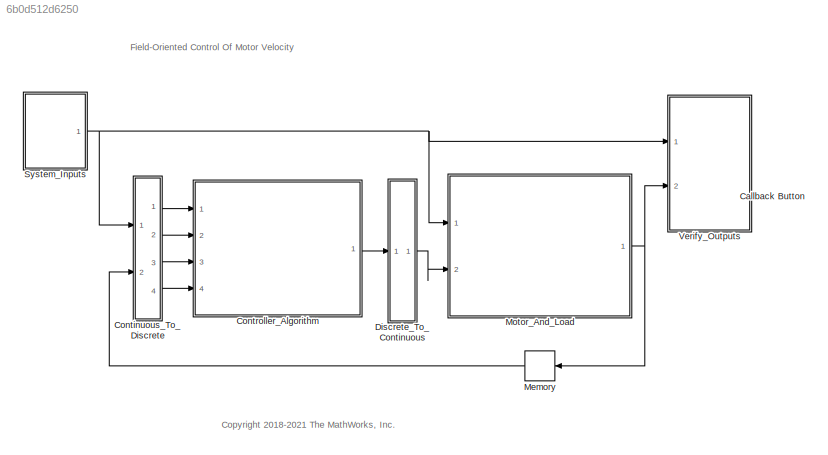
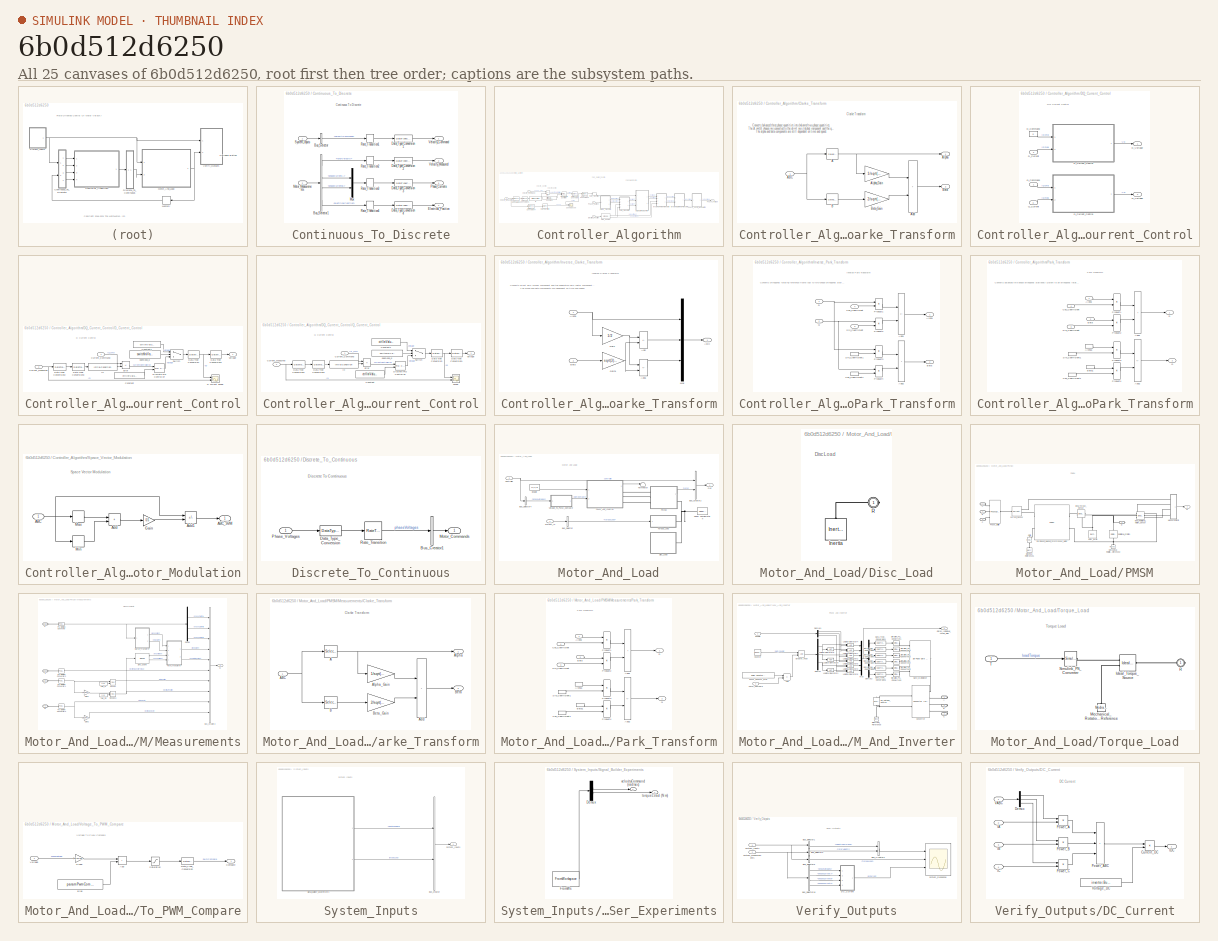
[diagram: thumbnail index - all 25 canvases of the model, root first then tree order]
MODEL slx_6b0d512d6250
KIND model
CONFIG AbsTol = auto
CONFIG EnableMultiTasking = on
CONFIG FixedStep = auto
CONFIG MaxStep = 20e-5
CONFIG MinStep = auto
CONFIG PreLoadFcn = load scdfocmotorSystune_initial
CONFIG RelTol = 1e-3
CONFIG SampleTimeConstraint = Unconstrained
CONFIG SolverName = ode23t
CONFIG StartTime = 0.0
CONFIG StopTime = 1
BLOCK [CallbackButton] Callback Button
  ButtonText = Open Scope
  ClickFcn = open_system([bdroot, '/Verify_Outputs/System_Response']);
BLOCK [SubSystem] Continuous_To_Discrete
  Ports = [2, 4]
  RequestExecContextInheritance = off
BLOCK [BusSelector] Continuous_To_Discrete/Bus_Selector
  OutputSignals = velocityCommand
  Ports = [1, 1]
BLOCK [BusSelector] Continuous_To_Discrete/Bus_Selector1
  OutputSignals = motor.rotorVelocity,motor.phaseCurrentA,motor.phaseCurrentB,motor.electricalPosition
  Ports = [1, 4]
BLOCK [DataTypeConversion] Continuous_To_Discrete/Data_Type_Conversion1
  RndMeth = Floor
  SaturateOnIntegerOverflow = off
BLOCK [DataTypeConversion] Continuous_To_Discrete/Data_Type_Conversion2
  RndMeth = Floor
  SaturateOnIntegerOverflow = off
BLOCK [DataTypeConversion] Continuous_To_Discrete/Data_Type_Conversion3
  RndMeth = Floor
  SaturateOnIntegerOverflow = off
BLOCK [DataTypeConversion] Continuous_To_Discrete/Data_Type_Conversion4
  RndMeth = Floor
  SaturateOnIntegerOverflow = off
BLOCK [Outport] Continuous_To_Discrete/Electrical_Position
  Port = 4
  VectorParamsAs1DForOutWhenUnconnected = off
BLOCK [Inport] Continuous_To_Discrete/Motor_Measurements
  Port = 2
BLOCK [Mux] Continuous_To_Discrete/Mux
  DisplayOption = bar
  Inputs = 2
  Ports = [2, 1]
BLOCK [Outport] Continuous_To_Discrete/Phase_Currents
  Port = 3
  VectorParamsAs1DForOutWhenUnconnected = off
BLOCK [RateTransition] Continuous_To_Discrete/Rate_Transition1
  Deterministic = off
  Integrity = off
BLOCK [RateTransition] Continuous_To_Discrete/Rate_Transition2
  Deterministic = off
  Integrity = off
BLOCK [RateTransition] Continuous_To_Discrete/Rate_Transition3
  Deterministic = off
  Integrity = off
BLOCK [RateTransition] Continuous_To_Discrete/Rate_Transition4
  Deterministic = off
  Integrity = off
BLOCK [Inport] Continuous_To_Discrete/System_Inputs
BLOCK [Outport] Continuous_To_Discrete/Velocity_Command
  VectorParamsAs1DForOutWhenUnconnected = off
BLOCK [Outport] Continuous_To_Discrete/Velocity_Measured
  Port = 2
  VectorParamsAs1DForOutWhenUnconnected = off
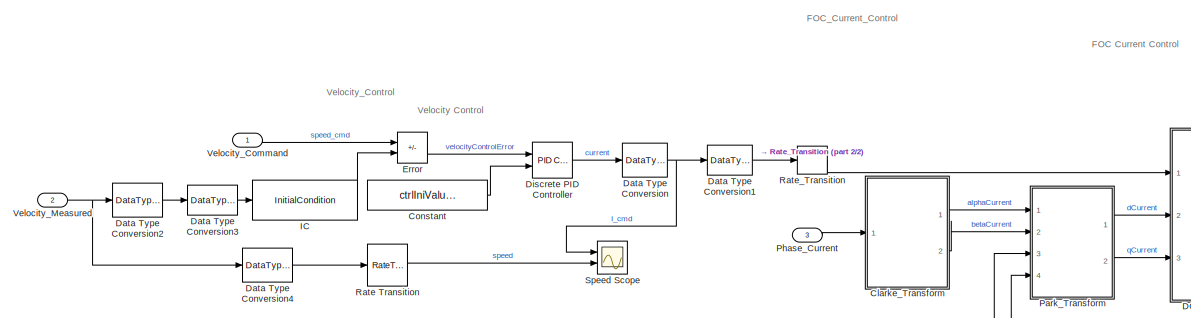
[diagram: Controller_Algorithm - part 1/2, middle left region]
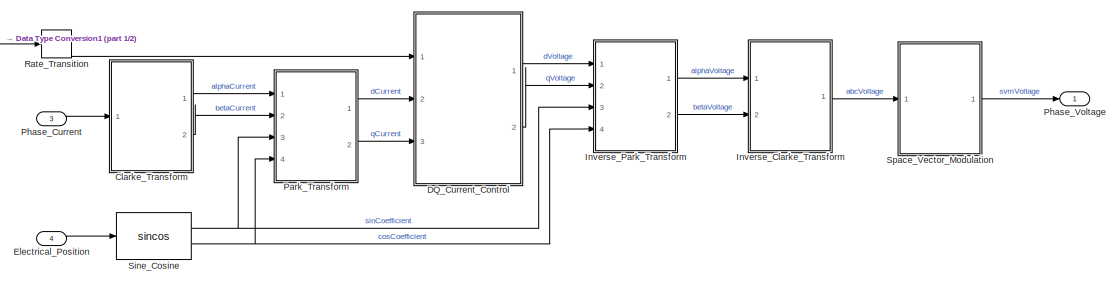
[diagram: Controller_Algorithm - part 2/2, middle right region]
BLOCK [SubSystem] Controller_Algorithm
  Ports = [4, 1]
  RequestExecContextInheritance = off
BLOCK [SubSystem] Controller_Algorithm/Clarke_Transform
  Ports = [1, 2]
  RequestExecContextInheritance = off
BLOCK [Selector] Controller_Algorithm/Clarke_Transform/A
  IndexMode = Zero-based
  IndexOptions = Index vector (dialog)
  Indices = 0
  InputPortWidth = 2
  OutputSizes = 1
  Ports = [1, 1]
BLOCK [Inport] Controller_Algorithm/Clarke_Transform/ABC
BLOCK [Sum] Controller_Algorithm/Clarke_Transform/Add
  IconShape = rectangular
  OutDataTypeStr = Inherit: Same as first input
  Ports = [2, 1]
BLOCK [Outport] Controller_Algorithm/Clarke_Transform/Alpha
  VectorParamsAs1DForOutWhenUnconnected = off
BLOCK [Gain] Controller_Algorithm/Clarke_Transform/Alpha_Gain
  Gain = 1/sqrt(3)
BLOCK [Selector] Controller_Algorithm/Clarke_Transform/B
  IndexMode = Zero-based
  IndexOptions = Index vector (dialog)
  Indices = 1
  InputPortWidth = 2
  OutputSizes = 1
  Ports = [1, 1]
BLOCK [Outport] Controller_Algorithm/Clarke_Transform/Beta
  Port = 2
  VectorParamsAs1DForOutWhenUnconnected = off
BLOCK [Gain] Controller_Algorithm/Clarke_Transform/Beta_Gain
  Gain = 2/sqrt(3)
BLOCK [Constant] Controller_Algorithm/Constant
  OutDataTypeStr = single
  SampleTime = -1
  Value = ctrlIniValues.speedCurrent
BLOCK [SubSystem] Controller_Algorithm/DQ_Current_Control
  Ports = [3, 2]
  RequestExecContextInheritance = off
BLOCK [Constant] Controller_Algorithm/DQ_Current_Control/D_Command
  OutDataTypeStr = single
  Value = 0
BLOCK [Inport] Controller_Algorithm/DQ_Current_Control/D_Current
  Port = 2
BLOCK [SubSystem] Controller_Algorithm/DQ_Current_Control/D_Current_Control
  Ports = [2, 1]
  RequestExecContextInheritance = off
BLOCK [Constant] Controller_Algorithm/DQ_Current_Control/D_Current_Control/Constant
  OutDataTypeStr = single
  SampleTime = -1
  Value = ctrlIniValues.voltageD
BLOCK [Constant] Controller_Algorithm/DQ_Current_Control/D_Current_Control/Constant1
  OutDataTypeStr = single
  SampleTime = -1
  Value = ctrlIniValues.voltageD
BLOCK [Inport] Controller_Algorithm/DQ_Current_Control/D_Current_Control/Current_Command
BLOCK [Inport] Controller_Algorithm/DQ_Current_Control/D_Current_Control/Current_Measured
  Port = 2
BLOCK [Scope] Controller_Algorithm/DQ_Current_Control/D_Current_Control/D current Scope
  Floating = off
  NumInputPorts = 2
  Ports = [2]
  ScopeSpecificationString = Simulink.scopes.TimeScopeBlockCfg('CurrentConfiguration', extmgr.ConfigurationSet(extmgr.Configuration('Core','General UI',true),extmgr.Configuration('Core','Source UI',true),extmgr.Configuration('Sources','WiredSimulink',true,'DataLoggingVariableName','ScopeData2'),extmgr.Configuration('Visuals','Time Domain',true,'SerializedDisplays',{struct('MinYLimReal','-0.11','MaxYLimReal','-0.09','YLabelRea...<+2037ch>
BLOCK [DataTypeConversion] Controller_Algorithm/DQ_Current_Control/D_Current_Control/Data Type Conversion
  OutDataTypeStr = double
  RndMeth = Floor
  SaturateOnIntegerOverflow = off
BLOCK [DataTypeConversion] Controller_Algorithm/DQ_Current_Control/D_Current_Control/Data Type Conversion1
  OutDataTypeStr = single
  RndMeth = Floor
  SaturateOnIntegerOverflow = off
BLOCK [DataTypeConversion] Controller_Algorithm/DQ_Current_Control/D_Current_Control/Data Type Conversion2
  OutDataTypeStr = double
  RndMeth = Floor
  SaturateOnIntegerOverflow = off
BLOCK [DataTypeConversion] Controller_Algorithm/DQ_Current_Control/D_Current_Control/Data Type Conversion3
  OutDataTypeStr = single
  RndMeth = Floor
  SaturateOnIntegerOverflow = off
BLOCK [Reference] Controller_Algorithm/DQ_Current_Control/D_Current_Control/Discrete PID Controller  REF=slpidlib/PID Controller
  Ports = [2, 1]
  SourceBlock = slpidlib/PID Controller
  SourceProductBaseCode = SL
  SourceType = PID 1dof
BLOCK [Sum] Controller_Algorithm/DQ_Current_Control/D_Current_Control/Error
  IconShape = rectangular
  Inputs = +-
  Ports = [2, 1]
BLOCK [InitialCondition] Controller_Algorithm/DQ_Current_Control/D_Current_Control/IC
  Value = ctrlIniValues.currentDIC
BLOCK [Switch] Controller_Algorithm/DQ_Current_Control/D_Current_Control/Switch
  Criteria = u2 > Threshold
  InputSameDT = off
  SaturateOnIntegerOverflow = off
BLOCK [Outport] Controller_Algorithm/DQ_Current_Control/D_Current_Control/Voltage
  VectorParamsAs1DForOutWhenUnconnected = off
BLOCK [Constant] Controller_Algorithm/DQ_Current_Control/D_Current_Control/openloop_d
  OutDataTypeStr = boolean
  SampleTime = -1
  Value = switchIniValue.openLoopD
BLOCK [Outport] Controller_Algorithm/DQ_Current_Control/D_Voltage
  VectorParamsAs1DForOutWhenUnconnected = off
BLOCK [Inport] Controller_Algorithm/DQ_Current_Control/Q_Command
  SampleTime = sampleTime.CurrentControl
BLOCK [Inport] Controller_Algorithm/DQ_Current_Control/Q_Current
  Port = 3
BLOCK [SubSystem] Controller_Algorithm/DQ_Current_Control/Q_Current_Control
  Ports = [2, 1]
  RequestExecContextInheritance = off
BLOCK [Constant] Controller_Algorithm/DQ_Current_Control/Q_Current_Control/Constant
  OutDataTypeStr = single
  SampleTime = -1
  Value = ctrlIniValues.voltageQ
BLOCK [Constant] Controller_Algorithm/DQ_Current_Control/Q_Current_Control/Constant1
  OutDataTypeStr = single
  SampleTime = -1
  Value = ctrlIniValues.voltageQ
BLOCK [Inport] Controller_Algorithm/DQ_Current_Control/Q_Current_Control/Current_Command
BLOCK [Inport] Controller_Algorithm/DQ_Current_Control/Q_Current_Control/Current_Measured
  Port = 2
BLOCK [DataTypeConversion] Controller_Algorithm/DQ_Current_Control/Q_Current_Control/Data Type Conversion
  OutDataTypeStr = double
  RndMeth = Floor
  SaturateOnIntegerOverflow = off
BLOCK [DataTypeConversion] Controller_Algorithm/DQ_Current_Control/Q_Current_Control/Data Type Conversion1
  OutDataTypeStr = single
  RndMeth = Floor
  SaturateOnIntegerOverflow = off
BLOCK [DataTypeConversion] Controller_Algorithm/DQ_Current_Control/Q_Current_Control/Data Type Conversion2
  OutDataTypeStr = double
  RndMeth = Floor
  SaturateOnIntegerOverflow = off
BLOCK [DataTypeConversion] Controller_Algorithm/DQ_Current_Control/Q_Current_Control/Data Type Conversion3
  OutDataTypeStr = single
  RndMeth = Floor
  SaturateOnIntegerOverflow = off
BLOCK [Reference] Controller_Algorithm/DQ_Current_Control/Q_Current_Control/Discrete PID Controller  REF=slpidlib/PID Controller
  Ports = [2, 1]
  SourceBlock = slpidlib/PID Controller
  SourceProductBaseCode = SL
  SourceType = PID 1dof
BLOCK [Sum] Controller_Algorithm/DQ_Current_Control/Q_Current_Control/Error
  IconShape = rectangular
  Inputs = +-
  Ports = [2, 1]
BLOCK [InitialCondition] Controller_Algorithm/DQ_Current_Control/Q_Current_Control/IC
  Value = ctrlIniValues.currentQIC
BLOCK [Scope] Controller_Algorithm/DQ_Current_Control/Q_Current_Control/Scope
  Floating = off
  NumInputPorts = 2
  Ports = [2]
  ScopeSpecificationString = Simulink.scopes.TimeScopeBlockCfg('CurrentConfiguration', extmgr.ConfigurationSet(extmgr.Configuration('Core','General UI',true),extmgr.Configuration('Core','Source UI',true),extmgr.Configuration('Sources','WiredSimulink',true,'DataLoggingVariableName','ScopeData3'),extmgr.Configuration('Visuals','Time Domain',true,'SerializedDisplays',{struct('MinYLimReal','2.5','MaxYLimReal','4.5','YLabelReal','...<+2027ch>
BLOCK [Switch] Controller_Algorithm/DQ_Current_Control/Q_Current_Control/Switch
  Criteria = u2 > Threshold
  InputSameDT = off
  SaturateOnIntegerOverflow = off
BLOCK [Outport] Controller_Algorithm/DQ_Current_Control/Q_Current_Control/Voltage
  VectorParamsAs1DForOutWhenUnconnected = off
BLOCK [Constant] Controller_Algorithm/DQ_Current_Control/Q_Current_Control/openloop_q
  OutDataTypeStr = boolean
  SampleTime = -1
  Value = switchIniValue.openLoopQ
BLOCK [Outport] Controller_Algorithm/DQ_Current_Control/Q_Voltage
  Port = 2
  VectorParamsAs1DForOutWhenUnconnected = off
BLOCK [DataTypeConversion] Controller_Algorithm/Data Type Conversion
  OutDataTypeStr = double
  RndMeth = Floor
  SaturateOnIntegerOverflow = off
BLOCK [DataTypeConversion] Controller_Algorithm/Data Type Conversion1
  OutDataTypeStr = single
  RndMeth = Floor
  SaturateOnIntegerOverflow = off
BLOCK [DataTypeConversion] Controller_Algorithm/Data Type Conversion2
  OutDataTypeStr = double
  RndMeth = Floor
  SaturateOnIntegerOverflow = off
BLOCK [DataTypeConversion] Controller_Algorithm/Data Type Conversion3
  OutDataTypeStr = single
  RndMeth = Floor
  SaturateOnIntegerOverflow = off
BLOCK [DataTypeConversion] Controller_Algorithm/Data Type Conversion4
  OutDataTypeStr = double
  RndMeth = Floor
  SaturateOnIntegerOverflow = off
BLOCK [Reference] Controller_Algorithm/Discrete PID Controller  REF=slpidlib/PID Controller
  Ports = [2, 1]
  SourceBlock = slpidlib/PID Controller
  SourceProductBaseCode = SL
  SourceType = PID 1dof
BLOCK [Inport] Controller_Algorithm/Electrical_Position
  OutDataTypeStr = single
  Port = 4
  SampleTime = sampleTime.CurrentControl
BLOCK [Sum] Controller_Algorithm/Error
  IconShape = rectangular
  Inputs = +-
  Ports = [2, 1]
BLOCK [InitialCondition] Controller_Algorithm/IC
  Value = ctrlIniValues.speedIC
BLOCK [SubSystem] Controller_Algorithm/Inverse_Clarke_Transform
  Ports = [2, 1]
  RTWSystemCode = Reusable function
  RequestExecContextInheritance = off
  VariantControl = INVERSE_CLARKE_TRANSFORM
BLOCK [Outport] Controller_Algorithm/Inverse_Clarke_Transform/ABC
  VectorParamsAs1DForOutWhenUnconnected = off
BLOCK [Sum] Controller_Algorithm/Inverse_Clarke_Transform/Add
  IconShape = rectangular
  Inputs = -+
  OutDataTypeStr = Inherit: Same as first input
  Ports = [2, 1]
BLOCK [Sum] Controller_Algorithm/Inverse_Clarke_Transform/Add1
  IconShape = rectangular
  Inputs = --
  OutDataTypeStr = Inherit: Same as first input
  Ports = [2, 1]
BLOCK [Inport] Controller_Algorithm/Inverse_Clarke_Transform/Alpha
BLOCK [Inport] Controller_Algorithm/Inverse_Clarke_Transform/Beta
  Port = 2
BLOCK [Gain] Controller_Algorithm/Inverse_Clarke_Transform/Gain
  Gain = 1/2
BLOCK [Gain] Controller_Algorithm/Inverse_Clarke_Transform/Gain1
  Gain = sqrt(3)/2
BLOCK [Mux] Controller_Algorithm/Inverse_Clarke_Transform/Mux
  DisplayOption = bar
  Inputs = 3
  Ports = [3, 1]
BLOCK [SubSystem] Controller_Algorithm/Inverse_Park_Transform
  Ports = [4, 2]
  RequestExecContextInheritance = off
BLOCK [Sum] Controller_Algorithm/Inverse_Park_Transform/Add1
  IconShape = rectangular
  Inputs = +-
  OutDataTypeStr = Inherit: Same as first input
  Ports = [2, 1]
BLOCK [Sum] Controller_Algorithm/Inverse_Park_Transform/Add2
  IconShape = rectangular
  OutDataTypeStr = Inherit: Same as first input
  Ports = [2, 1]
BLOCK [Outport] Controller_Algorithm/Inverse_Park_Transform/Alpha
  VectorParamsAs1DForOutWhenUnconnected = off
BLOCK [Outport] Controller_Algorithm/Inverse_Park_Transform/Beta
  Port = 2
  VectorParamsAs1DForOutWhenUnconnected = off
BLOCK [Inport] Controller_Algorithm/Inverse_Park_Transform/Cos_Coefficient
  Port = 4
BLOCK [InportShadow] Controller_Algorithm/Inverse_Park_Transform/Cos_Coefficient1
  Port = 4
BLOCK [Inport] Controller_Algorithm/Inverse_Park_Transform/D
BLOCK [Product] Controller_Algorithm/Inverse_Park_Transform/Product1
  Ports = [2, 1]
  RndMeth = Simplest
BLOCK [Product] Controller_Algorithm/Inverse_Park_Transform/Product2
  Ports = [2, 1]
  RndMeth = Simplest
BLOCK [Product] Controller_Algorithm/Inverse_Park_Transform/Product3
  Ports = [2, 1]
  RndMeth = Simplest
BLOCK [Product] Controller_Algorithm/Inverse_Park_Transform/Product4
  Ports = [2, 1]
  RndMeth = Simplest
BLOCK [Inport] Controller_Algorithm/Inverse_Park_Transform/Q
  Port = 2
BLOCK [Inport] Controller_Algorithm/Inverse_Park_Transform/Sin_Coefficient
  Port = 3
BLOCK [InportShadow] Controller_Algorithm/Inverse_Park_Transform/Sin_Coefficient1
  Port = 3
BLOCK [SubSystem] Controller_Algorithm/Park_Transform
  Ports = [4, 2]
  RequestExecContextInheritance = off
BLOCK [Sum] Controller_Algorithm/Park_Transform/Add1
  IconShape = rectangular
  OutDataTypeStr = Inherit: Same as first input
  Ports = [2, 1]
BLOCK [Sum] Controller_Algorithm/Park_Transform/Add2
  IconShape = rectangular
  Inputs = -+
  OutDataTypeStr = Inherit: Same as first input
  Ports = [2, 1]
BLOCK [Inport] Controller_Algorithm/Park_Transform/Alpha
BLOCK [InportShadow] Controller_Algorithm/Park_Transform/Alpha1
BLOCK [Inport] Controller_Algorithm/Park_Transform/Beta
  Port = 2
BLOCK [InportShadow] Controller_Algorithm/Park_Transform/Beta1
  Port = 2
BLOCK [Inport] Controller_Algorithm/Park_Transform/Cos_Coefficient
  Port = 4
BLOCK [InportShadow] Controller_Algorithm/Park_Transform/Cos_Coefficient1
  Port = 4
BLOCK [Outport] Controller_Algorithm/Park_Transform/D
  VectorParamsAs1DForOutWhenUnconnected = off
BLOCK [Product] Controller_Algorithm/Park_Transform/Product1
  Ports = [2, 1]
  RndMeth = Simplest
BLOCK [Product] Controller_Algorithm/Park_Transform/Product2
  Ports = [2, 1]
  RndMeth = Simplest
BLOCK [Product] Controller_Algorithm/Park_Transform/Product3
  Ports = [2, 1]
  RndMeth = Simplest
BLOCK [Product] Controller_Algorithm/Park_Transform/Product4
  Ports = [2, 1]
  RndMeth = Simplest
BLOCK [Outport] Controller_Algorithm/Park_Transform/Q
  Port = 2
  VectorParamsAs1DForOutWhenUnconnected = off
BLOCK [Inport] Controller_Algorithm/Park_Transform/Sin_Coefficient
  Port = 3
BLOCK [InportShadow] Controller_Algorithm/Park_Transform/Sin_Coefficient1
  Port = 3
BLOCK [Inport] Controller_Algorithm/Phase_Current
  OutDataTypeStr = single
  Port = 3
  SampleTime = sampleTime.CurrentControl
BLOCK [Outport] Controller_Algorithm/Phase_Voltage
  VectorParamsAs1DForOutWhenUnconnected = off
BLOCK [RateTransition] Controller_Algorithm/Rate Transition
  OutPortSampleTime = sampleTime.CurrentControl
BLOCK [RateTransition] Controller_Algorithm/Rate_Transition
  Integrity = off
BLOCK [Trigonometry] Controller_Algorithm/Sine_Cosine
  Operator = sincos
  Ports = [1, 2]
BLOCK [SubSystem] Controller_Algorithm/Space_Vector_Modulation
  Ports = [1, 1]
  RequestExecContextInheritance = off
  VariantControl = SpaceVectorModulation_JB
BLOCK [Inport] Controller_Algorithm/Space_Vector_Modulation/ABC
BLOCK [Outport] Controller_Algorithm/Space_Vector_Modulation/ABC_SVM
  VectorParamsAs1DForOutWhenUnconnected = off
BLOCK [Sum] Controller_Algorithm/Space_Vector_Modulation/Add
  IconShape = rectangular
  Ports = [2, 1]
BLOCK [Sum] Controller_Algorithm/Space_Vector_Modulation/Add1
  IconShape = rectangular
  Inputs = +-
  Ports = [2, 1]
BLOCK [Gain] Controller_Algorithm/Space_Vector_Modulation/Gain
  Gain = 0.5
  OutDataTypeStr = Inherit: Same as input
BLOCK [MinMax] Controller_Algorithm/Space_Vector_Modulation/Max
  Function = max
  Ports = [1, 1]
BLOCK [MinMax] Controller_Algorithm/Space_Vector_Modulation/Min
  Ports = [1, 1]
BLOCK [Scope] Controller_Algorithm/Speed Scope
  Floating = off
  NumInputPorts = 2
  Ports = [2]
  ScopeSpecificationString = Simulink.scopes.TimeScopeBlockCfg('CurrentConfiguration', extmgr.ConfigurationSet(extmgr.Configuration('Core','General UI',true),extmgr.Configuration('Core','Source UI',true),extmgr.Configuration('Sources','WiredSimulink',true,'DataLoggingVariableName','ScopeData1'),extmgr.Configuration('Visuals','Time Domain',true,'SerializedDisplays',{struct('MinYLimReal','-5.00000','MaxYLimReal','5.00000','YLab...<+2098ch>
BLOCK [Inport] Controller_Algorithm/Velocity_Command
  OutDataTypeStr = single
  SampleTime = sampleTime.VelocityControl
BLOCK [Inport] Controller_Algorithm/Velocity_Measured
  OutDataTypeStr = single
  Port = 2
  SampleTime = sampleTime.VelocityControl
BLOCK [SubSystem] Discrete_To_Continuous
  Ports = [1, 1]
  RequestExecContextInheritance = off
BLOCK [BusCreator] Discrete_To_Continuous/Bus_Creator1
  DisplayOption = bar
  InheritFromInputs = on
  Inputs = 1
  Ports = [1, 1]
BLOCK [DataTypeConversion] Discrete_To_Continuous/Data_Type_Conversion
  RndMeth = Floor
  SaturateOnIntegerOverflow = off
BLOCK [Outport] Discrete_To_Continuous/Motor_Commands
  VectorParamsAs1DForOutWhenUnconnected = off
BLOCK [Inport] Discrete_To_Continuous/Phase_Voltages
BLOCK [RateTransition] Discrete_To_Continuous/Rate_Transition
  Deterministic = off
  Integrity = off
BLOCK [Memory] Memory
BLOCK [SubSystem] Motor_And_Load
  Ports = [2, 1]
  RequestExecContextInheritance = off
BLOCK [BusCreator] Motor_And_Load/Bus_Creator2
  DisplayOption = bar
  InheritFromInputs = on
  Inputs = 2
  Ports = [2, 1]
BLOCK [BusSelector] Motor_And_Load/Bus_Selector
  OutputSignals = torqueLoad
  Ports = [1, 1]
BLOCK [BusSelector] Motor_And_Load/Bus_Selector4
  OutputSignals = phaseVoltages
  Ports = [1, 1]
BLOCK [Inport] Motor_And_Load/Controller
  Port = 2
BLOCK [SubSystem] Motor_And_Load/Disc_Load
  Ports = [0, 0, 0, 0, 0, 0, 1]
  RequestExecContextInheritance = off
  VariantControl = loadType == motorLoad.disc
BLOCK [Reference] Motor_And_Load/Disc_Load/Inertia  REF=fl_lib/Mechanical/Rotational Elements/Inertia
  AttributesFormatString = ---------------------------\nInertia = %<inertia>
  NameLocation = right
  Ports = [0, 0, 0, 0, 0, 1]
  SourceBlock = fl_lib/Mechanical/Rotational Elements/Inertia
  SourceProductBaseCode = PW,SS,VE
  SourceType = Inertia
BLOCK [PMIOPort] Motor_And_Load/Disc_Load/R
  Side = Right
BLOCK [Constant] Motor_And_Load/Enable
  Value = [1;1;1]
BLOCK [Outport] Motor_And_Load/Out
  VectorParamsAs1DForOutWhenUnconnected = off
BLOCK [SubSystem] Motor_And_Load/PMSM
  Ports = [0, 1, 0, 0, 0, 3, 1]
  RequestExecContextInheritance = off
BLOCK [PMIOPort] Motor_And_Load/PMSM/A
  Side = Left
BLOCK [PMIOPort] Motor_And_Load/PMSM/B
  Port = 2
  Side = Left
BLOCK [PMIOPort] Motor_And_Load/PMSM/C
  Port = 3
  Side = Left
BLOCK [Reference] Motor_And_Load/PMSM/Current_Sensor  REF=ee_lib/Sensors &
Transducers/Current Sensor
(Three-Phase)
  Ports = [0, 0, 0, 0, 0, 1, 2]
  SourceBlock = ee_lib/Sensors &\nTransducers/Current Sensor\n(Three-Phase)
  SourceProductBaseCode = PS
  SourceType = Current Sensor\n(Three-Phase)
BLOCK [Reference] Motor_And_Load/PMSM/Electrical Reference1  REF=fl_lib/Electrical/Electrical Elements/Electrical Reference
  NameLocation = right
  Ports = [0, 0, 0, 0, 0, 1]
  SourceBlock = fl_lib/Electrical/Electrical Elements/Electrical Reference
  SourceProductBaseCode = PW,SS,VE
  SourceType = Electrical Reference
BLOCK [Reference] Motor_And_Load/PMSM/Gmin  REF=fl_lib/Electrical/Electrical Elements/Resistor
  NameLocation = left
  Ports = [0, 0, 0, 0, 0, 1, 1]
  SourceBlock = fl_lib/Electrical/Electrical Elements/Resistor
  SourceProductBaseCode = PW,SS,VE
  SourceType = Resistor
BLOCK [Reference] Motor_And_Load/PMSM/Ideal_Rotational_Mot ion_Sensor  REF=fl_lib/Mechanical/Mechanical Sensors/Ideal Rotational
Motion Sensor
  Ports = [0, 0, 0, 0, 0, 1, 3]
  SourceBlock = fl_lib/Mechanical/Mechanical Sensors/Ideal Rotational\nMotion Sensor
  SourceProductBaseCode = PW,SS,VE
  SourceType = Ideal Rotational\nMotion Sensor
BLOCK [Reference] Motor_And_Load/PMSM/Ideal_Torque_Sensor  REF=fl_lib/Mechanical/Mechanical Sensors/Ideal Torque Sensor
  Ports = [0, 0, 0, 0, 0, 1, 2]
  SourceBlock = fl_lib/Mechanical/Mechanical Sensors/Ideal Torque Sensor
  SourceProductBaseCode = PW,SS,VE
  SourceType = Ideal Torque Sensor
BLOCK [Outport] Motor_And_Load/PMSM/M
  VectorParamsAs1DForOutWhenUnconnected = off
BLOCK [SubSystem] Motor_And_Load/PMSM/Measurements
  Ports = [0, 1, 0, 0, 0, 4]
  RequestExecContextInheritance = off
BLOCK [PMIOPort] Motor_And_Load/PMSM/Measurements/A
  Port = 3
  Side = Left
BLOCK [BusCreator] Motor_And_Load/PMSM/Measurements/Bus_Creator2
  DisplayOption = bar
  InheritFromInputs = on
  Inputs = 10
  Ports = [10, 1]
BLOCK [PMIOPort] Motor_And_Load/PMSM/Measurements/C
  Side = Left
BLOCK [SubSystem] Motor_And_Load/PMSM/Measurements/Clarke_Transform
  Ports = [1, 2]
  RequestExecContextInheritance = off
BLOCK [Selector] Motor_And_Load/PMSM/Measurements/Clarke_Transform/A
  IndexMode = Zero-based
  IndexOptions = Index vector (dialog)
  Indices = 0
  InputPortWidth = 3
  OutputSizes = 1
  Ports = [1, 1]
BLOCK [Inport] Motor_And_Load/PMSM/Measurements/Clarke_Transform/ABC
BLOCK [Sum] Motor_And_Load/PMSM/Measurements/Clarke_Transform/Add
  IconShape = rectangular
  OutDataTypeStr = Inherit: Same as first input
  Ports = [2, 1]
BLOCK [Outport] Motor_And_Load/PMSM/Measurements/Clarke_Transform/Alpha
  VectorParamsAs1DForOutWhenUnconnected = off
BLOCK [Gain] Motor_And_Load/PMSM/Measurements/Clarke_Transform/Alpha_Gain
  Gain = 1/sqrt(3)
BLOCK [Selector] Motor_And_Load/PMSM/Measurements/Clarke_Transform/B
  IndexMode = Zero-based
  IndexOptions = Index vector (dialog)
  Indices = 1
  InputPortWidth = 3
  OutputSizes = 1
  Ports = [1, 1]
BLOCK [Outport] Motor_And_Load/PMSM/Measurements/Clarke_Transform/Beta
  Port = 2
  VectorParamsAs1DForOutWhenUnconnected = off
BLOCK [Gain] Motor_And_Load/PMSM/Measurements/Clarke_Transform/Beta_Gain
  Gain = 2/sqrt(3)
BLOCK [Demux] Motor_And_Load/PMSM/Measurements/Demux
  Outputs = 3
  Ports = [1, 3]
BLOCK [Gain] Motor_And_Load/PMSM/Measurements/Gain1
  AttributesFormatString = -----------------------------\n%<Gain>
  Gain = pmsm.PolePairs
BLOCK [Gain] Motor_And_Load/PMSM/Measurements/Gain2
  AttributesFormatString = -----------------------------\n%<Gain>
  Gain = pmsm.PolePairs
BLOCK [Outport] Motor_And_Load/PMSM/Measurements/M
  VectorParamsAs1DForOutWhenUnconnected = off
BLOCK [Math] Motor_And_Load/PMSM/Measurements/Modulus
  Operator = mod
  Ports = [2, 1]
  SignedPower = on
BLOCK [Math] Motor_And_Load/PMSM/Measurements/Modulus1
  Operator = mod
  Ports = [2, 1]
  SignedPower = on
BLOCK [Reference] Motor_And_Load/PMSM/Measurements/PS-Simulink Converter  REF=nesl_utility/PS-Simulink
Converter
  Ports = [0, 1, 0, 0, 0, 1]
  SourceBlock = nesl_utility/PS-Simulink\nConverter
  SourceProductBaseCode = SS,PW,VE
  SourceType = PS-Simulink\nConverter
BLOCK [Reference] Motor_And_Load/PMSM/Measurements/PS-Simulink Converter1  REF=nesl_utility/PS-Simulink
Converter
  Ports = [0, 1, 0, 0, 0, 1]
  SourceBlock = nesl_utility/PS-Simulink\nConverter
  SourceProductBaseCode = SS,PW,VE
  SourceType = PS-Simulink\nConverter
BLOCK [Reference] Motor_And_Load/PMSM/Measurements/PS-Simulink Converter2  REF=nesl_utility/PS-Simulink
Converter
  NameLocation = top
  Ports = [0, 1, 0, 0, 0, 1]
  SourceBlock = nesl_utility/PS-Simulink\nConverter
  SourceProductBaseCode = SS,PW,VE
  SourceType = PS-Simulink\nConverter
BLOCK [Reference] Motor_And_Load/PMSM/Measurements/PS-Simulink Converter3  REF=nesl_utility/PS-Simulink
Converter
  Ports = [0, 1, 0, 0, 0, 1]
  SourceBlock = nesl_utility/PS-Simulink\nConverter
  SourceProductBaseCode = SS,PW,VE
  SourceType = PS-Simulink\nConverter
BLOCK [SubSystem] Motor_And_Load/PMSM/Measurements/Park_Transform
  Ports = [4, 2]
  RequestExecContextInheritance = off
BLOCK [Sum] Motor_And_Load/PMSM/Measurements/Park_Transform/Add1
  IconShape = rectangular
  OutDataTypeStr = Inherit: Same as first input
  Ports = [2, 1]
BLOCK [Sum] Motor_And_Load/PMSM/Measurements/Park_Transform/Add2
  IconShape = rectangular
  Inputs = -+
  OutDataTypeStr = Inherit: Same as first input
  Ports = [2, 1]
BLOCK [Inport] Motor_And_Load/PMSM/Measurements/Park_Transform/Alpha
BLOCK [InportShadow] Motor_And_Load/PMSM/Measurements/Park_Transform/Alpha1
BLOCK [Inport] Motor_And_Load/PMSM/Measurements/Park_Transform/Beta
  Port = 2
BLOCK [InportShadow] Motor_And_Load/PMSM/Measurements/Park_Transform/Beta1
  Port = 2
BLOCK [Inport] Motor_And_Load/PMSM/Measurements/Park_Transform/Cos_Coefficient
  Port = 4
BLOCK [InportShadow] Motor_And_Load/PMSM/Measurements/Park_Transform/Cos_Coefficient1
  Port = 4
BLOCK [Outport] Motor_And_Load/PMSM/Measurements/Park_Transform/D
  VectorParamsAs1DForOutWhenUnconnected = off
BLOCK [Product] Motor_And_Load/PMSM/Measurements/Park_Transform/Product1
  Ports = [2, 1]
  RndMeth = Simplest
BLOCK [Product] Motor_And_Load/PMSM/Measurements/Park_Transform/Product2
  Ports = [2, 1]
  RndMeth = Simplest
BLOCK [Product] Motor_And_Load/PMSM/Measurements/Park_Transform/Product3
  Ports = [2, 1]
  RndMeth = Simplest
BLOCK [Product] Motor_And_Load/PMSM/Measurements/Park_Transform/Product4
  Ports = [2, 1]
  RndMeth = Simplest
BLOCK [Outport] Motor_And_Load/PMSM/Measurements/Park_Transform/Q
  Port = 2
  VectorParamsAs1DForOutWhenUnconnected = off
BLOCK [Inport] Motor_And_Load/PMSM/Measurements/Park_Transform/Sin_Coefficient
  Port = 3
BLOCK [InportShadow] Motor_And_Load/PMSM/Measurements/Park_Transform/Sin_Coefficient1
  Port = 3
BLOCK [Trigonometry] Motor_And_Load/PMSM/Measurements/Sine_Cosine
  Operator = sincos
  Ports = [1, 2]
BLOCK [PMIOPort] Motor_And_Load/PMSM/Measurements/T
  Port = 2
  Side = Left
BLOCK [Constant] Motor_And_Load/PMSM/Measurements/Two_Pi
  OutDataTypeStr = Inherit: Inherit via back propagation
  Value = 2*pi
BLOCK [Constant] Motor_And_Load/PMSM/Measurements/Two_Pi1
  OutDataTypeStr = Inherit: Inherit via back propagation
  Value = 2*pi
BLOCK [PMIOPort] Motor_And_Load/PMSM/Measurements/W
  Port = 4
  Side = Left
BLOCK [Reference] Motor_And_Load/PMSM/Mechanical Rotational Reference2  REF=fl_lib/Mechanical/Rotational Elements/Mechanical
Rotational Reference
  NameLocation = right
  Ports = [0, 0, 0, 0, 0, 1]
  SourceBlock = fl_lib/Mechanical/Rotational Elements/Mechanical\nRotational Reference
  SourceProductBaseCode = PW,SS,VE
  SourceType = Mechanical\nRotational Reference
BLOCK [Reference] Motor_And_Load/PMSM/Permanent_Magnet_Synchronous_Motor  REF=ee_lib/Electromechanical/Permanent Magnet/PMSM
  Ports = [0, 0, 0, 0, 0, 2, 2]
  SourceBlock = ee_lib/Electromechanical/Permanent Magnet/PMSM
  SourceProductBaseCode = PS
  SourceType = PMSM
BLOCK [Reference] Motor_And_Load/PMSM/Phase_Splitter  REF=ee_lib/Connectors &
References/Phase Splitter
  Ports = [0, 0, 0, 0, 0, 1, 3]
  SourceBlock = ee_lib/Connectors &\nReferences/Phase Splitter
  SourceProductBaseCode = PS
  SourceType = Phase Splitter
BLOCK [PMIOPort] Motor_And_Load/PMSM/R
  Port = 4
  Side = Right
BLOCK [Reference] Motor_And_Load/PMSM/Rotational_Friction  REF=fl_lib/Mechanical/Rotational Elements/Rotational Friction
  NameLocation = right
  Ports = [0, 0, 0, 0, 0, 1, 1]
  SourceBlock = fl_lib/Mechanical/Rotational Elements/Rotational Friction
  SourceProductBaseCode = PW,SS,VE
  SourceType = Rotational Friction
BLOCK [Reference] Motor_And_Load/PMSM/Rotor_Inertia  REF=fl_lib/Mechanical/Rotational Elements/Inertia
  NameLocation = right
  Ports = [0, 0, 0, 0, 0, 1]
  SourceBlock = fl_lib/Mechanical/Rotational Elements/Inertia
  SourceProductBaseCode = PW,SS,VE
  SourceType = Inertia
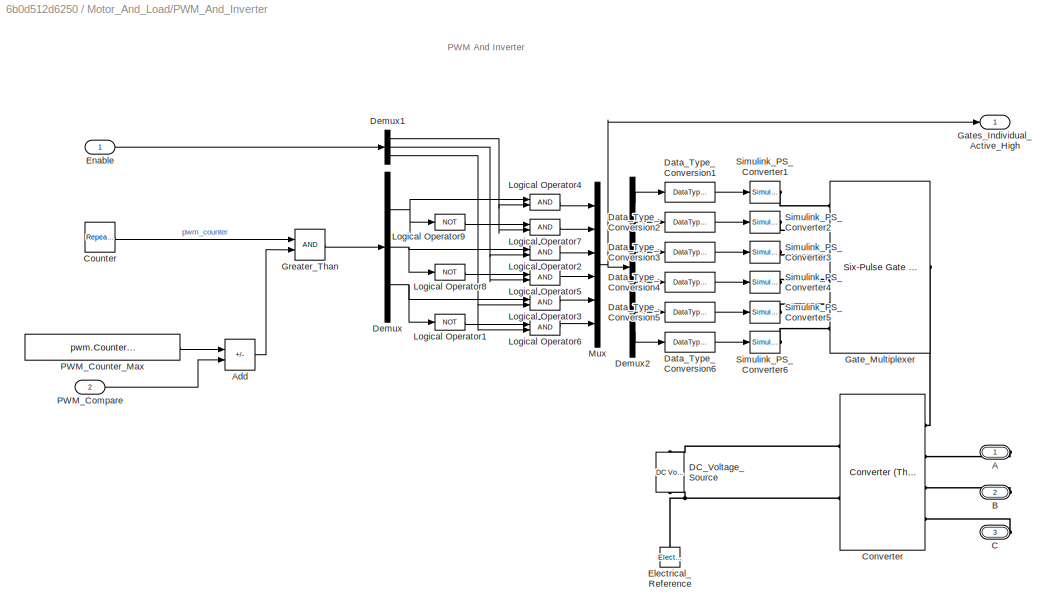
BLOCK [SubSystem] Motor_And_Load/PWM_And_Inverter
  Ports = [2, 1, 0, 0, 0, 0, 3]
  RequestExecContextInheritance = off
  VariantControl = variantPwm == enumPwm.behavior
BLOCK [PMIOPort] Motor_And_Load/PWM_And_Inverter/A
  Side = Right
BLOCK [Sum] Motor_And_Load/PWM_And_Inverter/Add
  IconShape = rectangular
  Inputs = +-
  OutDataTypeStr = Inherit: Same as first input
  Ports = [2, 1]
BLOCK [PMIOPort] Motor_And_Load/PWM_And_Inverter/B
  Port = 2
  Side = Right
BLOCK [PMIOPort] Motor_And_Load/PWM_And_Inverter/C
  Port = 3
  Side = Right
BLOCK [Reference] Motor_And_Load/PWM_And_Inverter/Converter  REF=ee_lib/Semiconductors &
Converters/Converters/Converter
(Three-Phase)
  Ports = [0, 0, 0, 0, 0, 4, 2]
  SourceBlock = ee_lib/Semiconductors &\nConverters/Converters/Converter\n(Three-Phase)
  SourceProductBaseCode = PS
  SourceType = Converter\n(Three-Phase)
BLOCK [Reference] Motor_And_Load/PWM_And_Inverter/Counter  REF=simulink/Sources/Repeating
Sequence
  AttributesFormatString = ---------------------------------------\nTime = %<rep_seq_t>\nValues = %<rep_seq_y>
  Ports = [0, 1]
  SourceBlock = simulink/Sources/Repeating\nSequence
  SourceProductBaseCode = SL
  SourceType = Repeating table
BLOCK [Reference] Motor_And_Load/PWM_And_Inverter/DC_Voltage_Source  REF=fl_lib/Electrical/Electrical Sources/DC Voltage Source
  AttributesFormatString = ------------------------------------\nV = %<v0>
  NameLocation = right
  Ports = [0, 0, 0, 0, 0, 1, 1]
  SourceBlock = fl_lib/Electrical/Electrical Sources/DC Voltage Source
  SourceProductBaseCode = PW,SS,VE
  SourceType = DC Voltage Source
BLOCK [DataTypeConversion] Motor_And_Load/PWM_And_Inverter/Data_Type_Conversion1
  OutDataTypeStr = double
  RndMeth = Floor
  SaturateOnIntegerOverflow = off
BLOCK [DataTypeConversion] Motor_And_Load/PWM_And_Inverter/Data_Type_Conversion2
  OutDataTypeStr = double
  RndMeth = Floor
  SaturateOnIntegerOverflow = off
BLOCK [DataTypeConversion] Motor_And_Load/PWM_And_Inverter/Data_Type_Conversion3
  OutDataTypeStr = double
  RndMeth = Floor
  SaturateOnIntegerOverflow = off
BLOCK [DataTypeConversion] Motor_And_Load/PWM_And_Inverter/Data_Type_Conversion4
  OutDataTypeStr = double
  RndMeth = Floor
  SaturateOnIntegerOverflow = off
BLOCK [DataTypeConversion] Motor_And_Load/PWM_And_Inverter/Data_Type_Conversion5
  OutDataTypeStr = double
  RndMeth = Floor
  SaturateOnIntegerOverflow = off
BLOCK [DataTypeConversion] Motor_And_Load/PWM_And_Inverter/Data_Type_Conversion6
  OutDataTypeStr = double
  RndMeth = Floor
  SaturateOnIntegerOverflow = off
BLOCK [Demux] Motor_And_Load/PWM_And_Inverter/Demux
  Outputs = 3
  Ports = [1, 3]
BLOCK [Demux] Motor_And_Load/PWM_And_Inverter/Demux1
  Outputs = 3
  Ports = [1, 3]
BLOCK [Demux] Motor_And_Load/PWM_And_Inverter/Demux2
  Outputs = 6
  Ports = [1, 6]
BLOCK [Reference] Motor_And_Load/PWM_And_Inverter/Electrical_Reference  REF=fl_lib/Electrical/Electrical Elements/Electrical Reference
  NameLocation = right
  Ports = [0, 0, 0, 0, 0, 1]
  SourceBlock = fl_lib/Electrical/Electrical Elements/Electrical Reference
  SourceProductBaseCode = PW,SS,VE
  SourceType = Electrical Reference
BLOCK [Inport] Motor_And_Load/PWM_And_Inverter/Enable
BLOCK [Reference] Motor_And_Load/PWM_And_Inverter/Gate_Multiplexer  REF=ee_lib/Semiconductors &
Converters/Converters/Six-Pulse Gate
Multiplexer
  Ports = [0, 0, 0, 0, 0, 6, 1]
  SourceBlock = ee_lib/Semiconductors &\nConverters/Converters/Six-Pulse Gate\nMultiplexer
  SourceProductBaseCode = PS
  SourceType = Six-Pulse Gate\nMultiplexer
BLOCK [Outport] Motor_And_Load/PWM_And_Inverter/Gates_Individual_Active_High
  VectorParamsAs1DForOutWhenUnconnected = off
BLOCK [RelationalOperator] Motor_And_Load/PWM_And_Inverter/Greater_Than
  InputSameDT = off
  OutDataTypeStr = boolean
  Ports = [2, 1]
BLOCK [Logic] Motor_And_Load/PWM_And_Inverter/Logical Operator1
  AllPortsSameDT = off
  IconShape = distinctive
  Operator = NOT
  OutDataTypeStr = boolean
  Ports = [1, 1]
BLOCK [Logic] Motor_And_Load/PWM_And_Inverter/Logical Operator2
  AllPortsSameDT = off
  IconShape = distinctive
  OutDataTypeStr = boolean
  Ports = [2, 1]
BLOCK [Logic] Motor_And_Load/PWM_And_Inverter/Logical Operator3
  AllPortsSameDT = off
  IconShape = distinctive
  OutDataTypeStr = boolean
  Ports = [2, 1]
BLOCK [Logic] Motor_And_Load/PWM_And_Inverter/Logical Operator4
  AllPortsSameDT = off
  IconShape = distinctive
  OutDataTypeStr = boolean
  Ports = [2, 1]
BLOCK [Logic] Motor_And_Load/PWM_And_Inverter/Logical Operator5
  AllPortsSameDT = off
  IconShape = distinctive
  OutDataTypeStr = boolean
  Ports = [2, 1]
BLOCK [Logic] Motor_And_Load/PWM_And_Inverter/Logical Operator6
  AllPortsSameDT = off
  IconShape = distinctive
  OutDataTypeStr = boolean
  Ports = [2, 1]
BLOCK [Logic] Motor_And_Load/PWM_And_Inverter/Logical Operator7
  AllPortsSameDT = off
  IconShape = distinctive
  OutDataTypeStr = boolean
  Ports = [2, 1]
BLOCK [Logic] Motor_And_Load/PWM_And_Inverter/Logical Operator8
  AllPortsSameDT = off
  IconShape = distinctive
  Operator = NOT
  OutDataTypeStr = boolean
  Ports = [1, 1]
BLOCK [Logic] Motor_And_Load/PWM_And_Inverter/Logical Operator9
  AllPortsSameDT = off
  IconShape = distinctive
  Operator = NOT
  OutDataTypeStr = boolean
  Ports = [1, 1]
BLOCK [Mux] Motor_And_Load/PWM_And_Inverter/Mux
  DisplayOption = bar
  Inputs = 6
  Ports = [6, 1]
BLOCK [Inport] Motor_And_Load/PWM_And_Inverter/PWM_Compare
  Port = 2
BLOCK [Constant] Motor_And_Load/PWM_And_Inverter/PWM_Counter_Max
  OutDataTypeStr = uint16
  Value = pwm.CounterMax
BLOCK [Reference] Motor_And_Load/PWM_And_Inverter/Simulink_PS_Converter1  REF=nesl_utility/Simulink-PS
Converter
  Ports = [1, 0, 0, 0, 0, 0, 1]
  SourceBlock = nesl_utility/Simulink-PS\nConverter
  SourceProductBaseCode = SS,PW,VE
  SourceType = Simulink-PS\nConverter
BLOCK [Reference] Motor_And_Load/PWM_And_Inverter/Simulink_PS_Converter2  REF=nesl_utility/Simulink-PS
Converter
  Ports = [1, 0, 0, 0, 0, 0, 1]
  SourceBlock = nesl_utility/Simulink-PS\nConverter
  SourceProductBaseCode = SS,PW,VE
  SourceType = Simulink-PS\nConverter
BLOCK [Reference] Motor_And_Load/PWM_And_Inverter/Simulink_PS_Converter3  REF=nesl_utility/Simulink-PS
Converter
  Ports = [1, 0, 0, 0, 0, 0, 1]
  SourceBlock = nesl_utility/Simulink-PS\nConverter
  SourceProductBaseCode = SS,PW,VE
  SourceType = Simulink-PS\nConverter
BLOCK [Reference] Motor_And_Load/PWM_And_Inverter/Simulink_PS_Converter4  REF=nesl_utility/Simulink-PS
Converter
  Ports = [1, 0, 0, 0, 0, 0, 1]
  SourceBlock = nesl_utility/Simulink-PS\nConverter
  SourceProductBaseCode = SS,PW,VE
  SourceType = Simulink-PS\nConverter
BLOCK [Reference] Motor_And_Load/PWM_And_Inverter/Simulink_PS_Converter5  REF=nesl_utility/Simulink-PS
Converter
  Ports = [1, 0, 0, 0, 0, 0, 1]
  SourceBlock = nesl_utility/Simulink-PS\nConverter
  SourceProductBaseCode = SS,PW,VE
  SourceType = Simulink-PS\nConverter
BLOCK [Reference] Motor_And_Load/PWM_And_Inverter/Simulink_PS_Converter6  REF=nesl_utility/Simulink-PS
Converter
  Ports = [1, 0, 0, 0, 0, 0, 1]
  SourceBlock = nesl_utility/Simulink-PS\nConverter
  SourceProductBaseCode = SS,PW,VE
  SourceType = Simulink-PS\nConverter
BLOCK [Reference] Motor_And_Load/Solver Configuration  REF=nesl_utility/Solver
Configuration
  Ports = [0, 0, 0, 0, 0, 0, 1]
  SourceBlock = nesl_utility/Solver\nConfiguration
  SourceProductBaseCode = SS,PW,VE
  SourceType = Solver\nConfiguration
BLOCK [Inport] Motor_And_Load/System_In
BLOCK [Terminator] Motor_And_Load/Terminator
BLOCK [SubSystem] Motor_And_Load/Torque_Load
  Ports = [1, 0, 0, 0, 0, 0, 1]
  RequestExecContextInheritance = off
  VariantControl = loadType == motorLoad.disc
BLOCK [Reference] Motor_And_Load/Torque_Load/Ideal_Torque_Source  REF=fl_lib/Mechanical/Mechanical Sources/Ideal Torque Source
  Ports = [0, 0, 0, 0, 0, 1, 2]
  SourceBlock = fl_lib/Mechanical/Mechanical Sources/Ideal Torque Source
  SourceProductBaseCode = PW,SS,VE
  SourceType = Ideal Torque Source
BLOCK [Reference] Motor_And_Load/Torque_Load/Mechanical_Rotational_Reference  REF=fl_lib/Mechanical/Rotational Elements/Mechanical
Rotational Reference
  NameLocation = right
  Ports = [0, 0, 0, 0, 0, 1]
  SourceBlock = fl_lib/Mechanical/Rotational Elements/Mechanical\nRotational Reference
  SourceProductBaseCode = PW,SS,VE
  SourceType = Mechanical\nRotational Reference
BLOCK [PMIOPort] Motor_And_Load/Torque_Load/R
  Side = Right
BLOCK [Reference] Motor_And_Load/Torque_Load/Simulink_PS_Converter  REF=nesl_utility/Simulink-PS
Converter
  Ports = [1, 0, 0, 0, 0, 0, 1]
  SourceBlock = nesl_utility/Simulink-PS\nConverter
  SourceProductBaseCode = SS,PW,VE
  SourceType = Simulink-PS\nConverter
BLOCK [Inport] Motor_And_Load/Torque_Load/T
BLOCK [SubSystem] Motor_And_Load/Voltage_To_PWM_Compare
  Ports = [1, 1]
  RequestExecContextInheritance = off
BLOCK [Sum] Motor_And_Load/Voltage_To_PWM_Compare/Add
  IconShape = rectangular
  OutDataTypeStr = Inherit: Inherit via back propagation
  Ports = [2, 1]
BLOCK [Constant] Motor_And_Load/Voltage_To_PWM_Compare/Bias
  OutDataTypeStr = Inherit: Inherit via back propagation
  SampleTime = -1
  Value = paramPwmCompareAtZeroVolt
BLOCK [Outport] Motor_And_Load/Voltage_To_PWM_Compare/Compare
  VectorParamsAs1DForOutWhenUnconnected = off
BLOCK [DataTypeConversion] Motor_And_Load/Voltage_To_PWM_Compare/Data_Type_Conversion
  LockScale = on
  OutDataTypeStr = uint16
  RndMeth = Floor
  SaturateOnIntegerOverflow = off
BLOCK [Saturate] Motor_And_Load/Voltage_To_PWM_Compare/Saturation
  AttributesFormatString = --------------------------------\nUpper Limit = %<UpperLimit>\nLower Limit = %<LowerLimit>
  LowerLimit = 0
  UpperLimit = paramPwmCompareMax
BLOCK [Gain] Motor_And_Load/Voltage_To_PWM_Compare/Slope
  AttributesFormatString = ----------------------------------------\nGain = %<Gain>
  Gain = paramPwmComparePerVolt
BLOCK [Inport] Motor_And_Load/Voltage_To_PWM_Compare/Voltage
BLOCK [SubSystem] System_Inputs
  Ports = [0, 1]
  RequestExecContextInheritance = off
BLOCK [BusCreator] System_Inputs/Bus_Creator
  DisplayOption = bar
  InheritFromInputs = on
  Inputs = 2
  Ports = [2, 1]
BLOCK [SubSystem] System_Inputs/Signal_Builder_Experiments
  ClipboardFcn = sigbuilder_block('clipboard');
  CloseFcn = sigbuilder_block('close');
  ContinueFcn = sigbuilder_block('continue');
  CopyFcn = sigbuilder_block('copy');
  DeleteFcn = sigbuilder_block('delete');
  LoadFcn = sigbuilder_block('load');
  MaskHideContents = on
  ModelCloseFcn = sigbuilder_block('modelClose');
  NameChangeFcn = sigbuilder_block('namechange');
  OpenFcn = sigbuilder_block('open',[-721.5 135 519.75 399.75 ]);
  PauseFcn = sigbuilder_block('pause');
  Ports = [0, 2]
  PreSaveFcn = sigbuilder_block('preSave');
  RequestExecContextInheritance = off
  StartFcn = sigbuilder_block('start');
  StopFcn = sigbuilder_block('stop');
  Tag = STV Subsys
BLOCK [Demux] System_Inputs/Signal_Builder_Experiments/Demux
  DisplayOption = none
  Outputs = 2
  Ports = [1, 2]
  Tag = STV Demux
BLOCK [FromWorkspace] System_Inputs/Signal_Builder_Experiments/FromWs
  SampleTime = -1
  Tag = STV FromWs
  VariableName = tuvar
  ZeroCross = off
BLOCK [Outport] System_Inputs/Signal_Builder_Experiments/torqueLoad (N m)
  Port = 2
  Tag = STV Outport
  VectorParamsAs1DForOutWhenUnconnected = off
BLOCK [Outport] System_Inputs/Signal_Builder_Experiments/velocityCommand (rad//sec)
  Tag = STV Outport
  VectorParamsAs1DForOutWhenUnconnected = off
BLOCK [Outport] System_Inputs/System_Inputs
  VectorParamsAs1DForOutWhenUnconnected = off
BLOCK [SubSystem] Verify_Outputs
  Description = System Analysis for Speed Control Design\n\nAnalyize and plot signals used to analyize performance of\nspeed  control designs
  Ports = [2]
  RequestExecContextInheritance = off
BLOCK [BusCreator] Verify_Outputs/Bus_Creator2
  DisplayOption = bar
  InheritFromInputs = on
  Inputs = 2
  Ports = [2, 1]
BLOCK [BusSelector] Verify_Outputs/Bus_Selector1
  OutputSignals = velocityCommand
  Ports = [1, 1]
BLOCK [BusSelector] Verify_Outputs/Bus_Selector10
  OutputSignals = controller.phaseVoltages,motor.phaseCurrentA,motor.phaseCurrentB,motor.phaseCurrentC
  Ports = [1, 4]
BLOCK [BusSelector] Verify_Outputs/Bus_Selector2
  OutputSignals = motor.rotorVelocity
  Ports = [1, 1]
BLOCK [BusSelector] Verify_Outputs/Bus_Selector9
  OutputSignals = torqueLoad
  Ports = [1, 1]
BLOCK [SubSystem] Verify_Outputs/DC_Current
  Ports = [4, 1]
  RequestExecContextInheritance = off
BLOCK [Product] Verify_Outputs/DC_Current/Current_DC
  Inputs = */
  Ports = [2, 1]
BLOCK [Demux] Verify_Outputs/DC_Current/Demux
  Outputs = 3
  Ports = [1, 3]
BLOCK [Inport] Verify_Outputs/DC_Current/IA
  Port = 2
BLOCK [Inport] Verify_Outputs/DC_Current/IB
  Port = 3
BLOCK [Inport] Verify_Outputs/DC_Current/IC
  Port = 4
BLOCK [Outport] Verify_Outputs/DC_Current/IDC
  VectorParamsAs1DForOutWhenUnconnected = off
BLOCK [Product] Verify_Outputs/DC_Current/Power_A
  Ports = [2, 1]
BLOCK [Sum] Verify_Outputs/DC_Current/Power_ABC
  IconShape = rectangular
  Inputs = +++
  Ports = [3, 1]
BLOCK [Product] Verify_Outputs/DC_Current/Power_B
  Ports = [2, 1]
BLOCK [Product] Verify_Outputs/DC_Current/Power_C
  Ports = [2, 1]
BLOCK [Inport] Verify_Outputs/DC_Current/VABC
BLOCK [Constant] Verify_Outputs/DC_Current/Voltage_DC
  Value = inverter.BusVoltage
BLOCK [Inport] Verify_Outputs/System_Inputs
BLOCK [Inport] Verify_Outputs/System_Measurements
  Port = 2
BLOCK [Scope] Verify_Outputs/System_Response
  DefaultConfigurationName = spbscopes.TimeScopeBlockCfg
  Floating = off
  NumInputPorts = 3
  Ports = [3]
  ScopeSpecificationString = spbscopes.TimeScopeBlockCfg('CurrentConfiguration', extmgr.ConfigurationSet(extmgr.Configuration('Core','General UI',true,'FigureColor',[0.941176470588235 0.941176470588235 0.941176470588235]),extmgr.Configuration('Core','Source UI',true),extmgr.Configuration('Sources','WiredSimulink',true,'PointsPerSignal',5000000),extmgr.Configuration('Visuals','Time Domain',true,'DisplayLayoutDimensions',[3 1],...<+3659ch>
ANNOTATION (root): <copyright redacted>
ANNOTATION (root): Field-Oriented Control Of Motor Velocity
ANNOTATION Continuous_To_Discrete: Continuous To Discrete
ANNOTATION Controller_Algorithm: FOC Current Control
ANNOTATION Controller_Algorithm: FOC_Current_Control
ANNOTATION Controller_Algorithm: Velocity Control
ANNOTATION Controller_Algorithm: Velocity_Control
ANNOTATION Controller_Algorithm/Clarke_Transform: Clarke Transform
ANNOTATION Controller_Algorithm/Clarke_Transform: Converts balanced three-phase quantities into balanced two-phase quantities. The A and B phases are converted to the direct axis (alpha) component and the quadrature axis (beta) component. The alpha and beta components are still dependent on time and speed.
ANNOTATION Controller_Algorithm/DQ_Current_Control: DQ Current Control
ANNOTATION Controller_Algorithm/DQ_Current_Control/D_Current_Control: D Current Control
ANNOTATION Controller_Algorithm/DQ_Current_Control/Q_Current_Control: Q Current Control
ANNOTATION Controller_Algorithm/Inverse_Clarke_Transform: Converts direct axis (alpha) component and the quadrature axis (beta) component to balanced three-phase quantities The alpha and beta components are dependent on time and speed.
ANNOTATION Controller_Algorithm/Inverse_Clarke_Transform: Inverse Clarke Transform
ANNOTATION Controller_Algorithm/Inverse_Park_Transform: Converts orthogonal rotating reference frame (dq) to two-phase orthogonal stationary reference frame (alpha, beta)
ANNOTATION Controller_Algorithm/Inverse_Park_Transform: Inverse Park Transform
ANNOTATION Controller_Algorithm/Park_Transform: Converts balanced two-phase orthogonal stationary system to an orthogonal rotating reference frame.
ANNOTATION Controller_Algorithm/Park_Transform: Park Transform
ANNOTATION Controller_Algorithm/Space_Vector_Modulation: Space Vector Modulation
ANNOTATION Discrete_To_Continuous: Discrete To Continuous
ANNOTATION Motor_And_Load: Motor And Load
ANNOTATION Motor_And_Load/Disc_Load: Disc Load
ANNOTATION Motor_And_Load/PMSM: PMSM
ANNOTATION Motor_And_Load/PMSM/Measurements: Measurements
ANNOTATION Motor_And_Load/PMSM/Measurements/Clarke_Transform: Clarke Transform
ANNOTATION Motor_And_Load/PMSM/Measurements/Park_Transform: Park Transform
ANNOTATION Motor_And_Load/PWM_And_Inverter: PWM And Inverter
ANNOTATION Motor_And_Load/Torque_Load: Torque Load
ANNOTATION Motor_And_Load/Voltage_To_PWM_Compare: Voltage To PWM Compare
ANNOTATION System_Inputs: System Inputs
ANNOTATION Verify_Outputs: Verify Outputs
ANNOTATION Verify_Outputs/DC_Current: DC Current
LINE Continuous_To_Discrete/Bus_Selector1:1 -> Continuous_To_Discrete/Rate_Transition2:1
LINE Continuous_To_Discrete/Bus_Selector1:2 -> Continuous_To_Discrete/Mux:1
LINE Continuous_To_Discrete/Bus_Selector1:3 -> Continuous_To_Discrete/Mux:2
LINE Continuous_To_Discrete/Bus_Selector1:4 -> Continuous_To_Discrete/Rate_Transition4:1
LINE Continuous_To_Discrete/Bus_Selector:1 -> Continuous_To_Discrete/Rate_Transition1:1
LINE Continuous_To_Discrete/Data_Type_Conversion1:1 -> Continuous_To_Discrete/Velocity_Command:1
LINE Continuous_To_Discrete/Data_Type_Conversion2:1 -> Continuous_To_Discrete/Velocity_Measured:1
LINE Continuous_To_Discrete/Data_Type_Conversion3:1 -> Continuous_To_Discrete/Phase_Currents:1
LINE Continuous_To_Discrete/Data_Type_Conversion4:1 -> Continuous_To_Discrete/Electrical_Position:1
LINE Continuous_To_Discrete/Motor_Measurements:1 -> Continuous_To_Discrete/Bus_Selector1:1
LINE Continuous_To_Discrete/Mux:1 -> Continuous_To_Discrete/Rate_Transition3:1
LINE Continuous_To_Discrete/Rate_Transition1:1 -> Continuous_To_Discrete/Data_Type_Conversion1:1
LINE Continuous_To_Discrete/Rate_Transition2:1 -> Continuous_To_Discrete/Data_Type_Conversion2:1
LINE Continuous_To_Discrete/Rate_Transition3:1 -> Continuous_To_Discrete/Data_Type_Conversion3:1
LINE Continuous_To_Discrete/Rate_Transition4:1 -> Continuous_To_Discrete/Data_Type_Conversion4:1
LINE Continuous_To_Discrete/System_Inputs:1 -> Continuous_To_Discrete/Bus_Selector:1
LINE Continuous_To_Discrete:1 -> Controller_Algorithm:1
LINE Continuous_To_Discrete:2 -> Controller_Algorithm:2
LINE Continuous_To_Discrete:3 -> Controller_Algorithm:3
LINE Continuous_To_Discrete:4 -> Controller_Algorithm:4
NET Controller_Algorithm/Clarke_Transform/A:1 -> Controller_Algorithm/Clarke_Transform/Alpha:1, Controller_Algorithm/Clarke_Transform/Alpha_Gain:1
NET Controller_Algorithm/Clarke_Transform/ABC:1 -> Controller_Algorithm/Clarke_Transform/A:1, Controller_Algorithm/Clarke_Transform/B:1
LINE Controller_Algorithm/Clarke_Transform/Add:1 -> Controller_Algorithm/Clarke_Transform/Beta:1
LINE Controller_Algorithm/Clarke_Transform/Alpha_Gain:1 -> Controller_Algorithm/Clarke_Transform/Add:1
LINE Controller_Algorithm/Clarke_Transform/B:1 -> Controller_Algorithm/Clarke_Transform/Beta_Gain:1
LINE Controller_Algorithm/Clarke_Transform/Beta_Gain:1 -> Controller_Algorithm/Clarke_Transform/Add:2
LINE Controller_Algorithm/Clarke_Transform:1 -> Controller_Algorithm/Park_Transform:1
LINE Controller_Algorithm/Clarke_Transform:2 -> Controller_Algorithm/Park_Transform:2
LINE Controller_Algorithm/Constant:1 -> Controller_Algorithm/Discrete PID Controller:2
LINE Controller_Algorithm/DQ_Current_Control/D_Command:1 -> Controller_Algorithm/DQ_Current_Control/D_Current_Control:1
LINE Controller_Algorithm/DQ_Current_Control/D_Current:1 -> Controller_Algorithm/DQ_Current_Control/D_Current_Control:2
LINE Controller_Algorithm/DQ_Current_Control/D_Current_Control/Constant1:1 -> Controller_Algorithm/DQ_Current_Control/D_Current_Control/Switch:1
LINE Controller_Algorithm/DQ_Current_Control/D_Current_Control/Constant:1 -> Controller_Algorithm/DQ_Current_Control/D_Current_Control/Discrete PID Controller:2
LINE Controller_Algorithm/DQ_Current_Control/D_Current_Control/Current_Command:1 -> Controller_Algorithm/DQ_Current_Control/D_Current_Control/Error:1
NET Controller_Algorithm/DQ_Current_Control/D_Current_Control/Current_Measured:1 -> Controller_Algorithm/DQ_Current_Control/D_Current_Control/D current Scope:2, Controller_Algorithm/DQ_Current_Control/D_Current_Control/Data Type Conversion2:1
LINE Controller_Algorithm/DQ_Current_Control/D_Current_Control/Data Type Conversion1:1 -> Controller_Algorithm/DQ_Current_Control/D_Current_Control/Voltage:1
LINE Controller_Algorithm/DQ_Current_Control/D_Current_Control/Data Type Conversion2:1 -> Controller_Algorithm/DQ_Current_Control/D_Current_Control/Data Type Conversion3:1
LINE Controller_Algorithm/DQ_Current_Control/D_Current_Control/Data Type Conversion3:1 -> Controller_Algorithm/DQ_Current_Control/D_Current_Control/IC:1
NET Controller_Algorithm/DQ_Current_Control/D_Current_Control/Data Type Conversion:1 -> Controller_Algorithm/DQ_Current_Control/D_Current_Control/D current Scope:1, Controller_Algorithm/DQ_Current_Control/D_Current_Control/Data Type Conversion1:1
LINE Controller_Algorithm/DQ_Current_Control/D_Current_Control/Discrete PID Controller:1 -> Controller_Algorithm/DQ_Current_Control/D_Current_Control/Switch:3
LINE Controller_Algorithm/DQ_Current_Control/D_Current_Control/Error:1 -> Controller_Algorithm/DQ_Current_Control/D_Current_Control/Discrete PID Controller:1
LINE Controller_Algorithm/DQ_Current_Control/D_Current_Control/IC:1 -> Controller_Algorithm/DQ_Current_Control/D_Current_Control/Error:2
LINE Controller_Algorithm/DQ_Current_Control/D_Current_Control/Switch:1 -> Controller_Algorithm/DQ_Current_Control/D_Current_Control/Data Type Conversion:1
LINE Controller_Algorithm/DQ_Current_Control/D_Current_Control/openloop_d:1 -> Controller_Algorithm/DQ_Current_Control/D_Current_Control/Switch:2
LINE Controller_Algorithm/DQ_Current_Control/D_Current_Control:1 -> Controller_Algorithm/DQ_Current_Control/D_Voltage:1
LINE Controller_Algorithm/DQ_Current_Control/Q_Command:1 -> Controller_Algorithm/DQ_Current_Control/Q_Current_Control:1
LINE Controller_Algorithm/DQ_Current_Control/Q_Current:1 -> Controller_Algorithm/DQ_Current_Control/Q_Current_Control:2
LINE Controller_Algorithm/DQ_Current_Control/Q_Current_Control/Constant1:1 -> Controller_Algorithm/DQ_Current_Control/Q_Current_Control/Switch:1
LINE Controller_Algorithm/DQ_Current_Control/Q_Current_Control/Constant:1 -> Controller_Algorithm/DQ_Current_Control/Q_Current_Control/Discrete PID Controller:2
LINE Controller_Algorithm/DQ_Current_Control/Q_Current_Control/Current_Command:1 -> Controller_Algorithm/DQ_Current_Control/Q_Current_Control/Error:1
NET Controller_Algorithm/DQ_Current_Control/Q_Current_Control/Current_Measured:1 -> Controller_Algorithm/DQ_Current_Control/Q_Current_Control/Data Type Conversion2:1, Controller_Algorithm/DQ_Current_Control/Q_Current_Control/Scope:2
LINE Controller_Algorithm/DQ_Current_Control/Q_Current_Control/Data Type Conversion1:1 -> Controller_Algorithm/DQ_Current_Control/Q_Current_Control/Voltage:1
LINE Controller_Algorithm/DQ_Current_Control/Q_Current_Control/Data Type Conversion2:1 -> Controller_Algorithm/DQ_Current_Control/Q_Current_Control/Data Type Conversion3:1
LINE Controller_Algorithm/DQ_Current_Control/Q_Current_Control/Data Type Conversion3:1 -> Controller_Algorithm/DQ_Current_Control/Q_Current_Control/IC:1
NET Controller_Algorithm/DQ_Current_Control/Q_Current_Control/Data Type Conversion:1 -> Controller_Algorithm/DQ_Current_Control/Q_Current_Control/Data Type Conversion1:1, Controller_Algorithm/DQ_Current_Control/Q_Current_Control/Scope:1
LINE Controller_Algorithm/DQ_Current_Control/Q_Current_Control/Discrete PID Controller:1 -> Controller_Algorithm/DQ_Current_Control/Q_Current_Control/Switch:3
LINE Controller_Algorithm/DQ_Current_Control/Q_Current_Control/Error:1 -> Controller_Algorithm/DQ_Current_Control/Q_Current_Control/Discrete PID Controller:1
LINE Controller_Algorithm/DQ_Current_Control/Q_Current_Control/IC:1 -> Controller_Algorithm/DQ_Current_Control/Q_Current_Control/Error:2
LINE Controller_Algorithm/DQ_Current_Control/Q_Current_Control/Switch:1 -> Controller_Algorithm/DQ_Current_Control/Q_Current_Control/Data Type Conversion:1
LINE Controller_Algorithm/DQ_Current_Control/Q_Current_Control/openloop_q:1 -> Controller_Algorithm/DQ_Current_Control/Q_Current_Control/Switch:2
LINE Controller_Algorithm/DQ_Current_Control/Q_Current_Control:1 -> Controller_Algorithm/DQ_Current_Control/Q_Voltage:1
LINE Controller_Algorithm/DQ_Current_Control:1 -> Controller_Algorithm/Inverse_Park_Transform:1
LINE Controller_Algorithm/DQ_Current_Control:2 -> Controller_Algorithm/Inverse_Park_Transform:2
LINE Controller_Algorithm/Data Type Conversion1:1 -> Controller_Algorithm/Rate_Transition:1
LINE Controller_Algorithm/Data Type Conversion2:1 -> Controller_Algorithm/Data Type Conversion3:1
LINE Controller_Algorithm/Data Type Conversion3:1 -> Controller_Algorithm/IC:1
LINE Controller_Algorithm/Data Type Conversion4:1 -> Controller_Algorithm/Rate Transition:1
NET Controller_Algorithm/Data Type Conversion:1 -> Controller_Algorithm/Data Type Conversion1:1, Controller_Algorithm/Speed Scope:1
LINE Controller_Algorithm/Discrete PID Controller:1 -> Controller_Algorithm/Data Type Conversion:1
LINE Controller_Algorithm/Electrical_Position:1 -> Controller_Algorithm/Sine_Cosine:1
LINE Controller_Algorithm/Error:1 -> Controller_Algorithm/Discrete PID Controller:1
LINE Controller_Algorithm/IC:1 -> Controller_Algorithm/Error:2
LINE Controller_Algorithm/Inverse_Clarke_Transform/Add1:1 -> Controller_Algorithm/Inverse_Clarke_Transform/Mux:3
LINE Controller_Algorithm/Inverse_Clarke_Transform/Add:1 -> Controller_Algorithm/Inverse_Clarke_Transform/Mux:2
NET Controller_Algorithm/Inverse_Clarke_Transform/Alpha:1 -> Controller_Algorithm/Inverse_Clarke_Transform/Gain:1, Controller_Algorithm/Inverse_Clarke_Transform/Mux:1
LINE Controller_Algorithm/Inverse_Clarke_Transform/Beta:1 -> Controller_Algorithm/Inverse_Clarke_Transform/Gain1:1
NET Controller_Algorithm/Inverse_Clarke_Transform/Gain1:1 -> Controller_Algorithm/Inverse_Clarke_Transform/Add1:2, Controller_Algorithm/Inverse_Clarke_Transform/Add:2
NET Controller_Algorithm/Inverse_Clarke_Transform/Gain:1 -> Controller_Algorithm/Inverse_Clarke_Transform/Add1:1, Controller_Algorithm/Inverse_Clarke_Transform/Add:1
LINE Controller_Algorithm/Inverse_Clarke_Transform/Mux:1 -> Controller_Algorithm/Inverse_Clarke_Transform/ABC:1
LINE Controller_Algorithm/Inverse_Clarke_Transform:1 -> Controller_Algorithm/Space_Vector_Modulation:1
LINE Controller_Algorithm/Inverse_Park_Transform/Add1:1 -> Controller_Algorithm/Inverse_Park_Transform/Alpha:1
LINE Controller_Algorithm/Inverse_Park_Transform/Add2:1 -> Controller_Algorithm/Inverse_Park_Transform/Beta:1
LINE Controller_Algorithm/Inverse_Park_Transform/Cos_Coefficient1:1 -> Controller_Algorithm/Inverse_Park_Transform/Product4:2
LINE Controller_Algorithm/Inverse_Park_Transform/Cos_Coefficient:1 -> Controller_Algorithm/Inverse_Park_Transform/Product1:2
NET Controller_Algorithm/Inverse_Park_Transform/D:1 -> Controller_Algorithm/Inverse_Park_Transform/Product1:1, Controller_Algorithm/Inverse_Park_Transform/Product3:1
LINE Controller_Algorithm/Inverse_Park_Transform/Product1:1 -> Controller_Algorithm/Inverse_Park_Transform/Add1:1
LINE Controller_Algorithm/Inverse_Park_Transform/Product2:1 -> Controller_Algorithm/Inverse_Park_Transform/Add1:2
LINE Controller_Algorithm/Inverse_Park_Transform/Product3:1 -> Controller_Algorithm/Inverse_Park_Transform/Add2:1
LINE Controller_Algorithm/Inverse_Park_Transform/Product4:1 -> Controller_Algorithm/Inverse_Park_Transform/Add2:2
NET Controller_Algorithm/Inverse_Park_Transform/Q:1 -> Controller_Algorithm/Inverse_Park_Transform/Product2:1, Controller_Algorithm/Inverse_Park_Transform/Product4:1
LINE Controller_Algorithm/Inverse_Park_Transform/Sin_Coefficient1:1 -> Controller_Algorithm/Inverse_Park_Transform/Product3:2
LINE Controller_Algorithm/Inverse_Park_Transform/Sin_Coefficient:1 -> Controller_Algorithm/Inverse_Park_Transform/Product2:2
LINE Controller_Algorithm/Inverse_Park_Transform:1 -> Controller_Algorithm/Inverse_Clarke_Transform:1
LINE Controller_Algorithm/Inverse_Park_Transform:2 -> Controller_Algorithm/Inverse_Clarke_Transform:2
LINE Controller_Algorithm/Park_Transform/Add1:1 -> Controller_Algorithm/Park_Transform/D:1
LINE Controller_Algorithm/Park_Transform/Add2:1 -> Controller_Algorithm/Park_Transform/Q:1
LINE Controller_Algorithm/Park_Transform/Alpha1:1 -> Controller_Algorithm/Park_Transform/Product3:1
LINE Controller_Algorithm/Park_Transform/Alpha:1 -> Controller_Algorithm/Park_Transform/Product1:1
LINE Controller_Algorithm/Park_Transform/Beta1:1 -> Controller_Algorithm/Park_Transform/Product4:1
LINE Controller_Algorithm/Park_Transform/Beta:1 -> Controller_Algorithm/Park_Transform/Product2:1
LINE Controller_Algorithm/Park_Transform/Cos_Coefficient1:1 -> Controller_Algorithm/Park_Transform/Product4:2
LINE Controller_Algorithm/Park_Transform/Cos_Coefficient:1 -> Controller_Algorithm/Park_Transform/Product1:2
LINE Controller_Algorithm/Park_Transform/Product1:1 -> Controller_Algorithm/Park_Transform/Add1:1
LINE Controller_Algorithm/Park_Transform/Product2:1 -> Controller_Algorithm/Park_Transform/Add1:2
LINE Controller_Algorithm/Park_Transform/Product3:1 -> Controller_Algorithm/Park_Transform/Add2:1
LINE Controller_Algorithm/Park_Transform/Product4:1 -> Controller_Algorithm/Park_Transform/Add2:2
LINE Controller_Algorithm/Park_Transform/Sin_Coefficient1:1 -> Controller_Algorithm/Park_Transform/Product3:2
LINE Controller_Algorithm/Park_Transform/Sin_Coefficient:1 -> Controller_Algorithm/Park_Transform/Product2:2
LINE Controller_Algorithm/Park_Transform:1 -> Controller_Algorithm/DQ_Current_Control:2
LINE Controller_Algorithm/Park_Transform:2 -> Controller_Algorithm/DQ_Current_Control:3
LINE Controller_Algorithm/Phase_Current:1 -> Controller_Algorithm/Clarke_Transform:1
LINE Controller_Algorithm/Rate Transition:1 -> Controller_Algorithm/Speed Scope:2
LINE Controller_Algorithm/Rate_Transition:1 -> Controller_Algorithm/DQ_Current_Control:1
NET Controller_Algorithm/Sine_Cosine:1 -> Controller_Algorithm/Inverse_Park_Transform:3, Controller_Algorithm/Park_Transform:3
NET Controller_Algorithm/Sine_Cosine:2 -> Controller_Algorithm/Inverse_Park_Transform:4, Controller_Algorithm/Park_Transform:4
NET Controller_Algorithm/Space_Vector_Modulation/ABC:1 -> Controller_Algorithm/Space_Vector_Modulation/Add1:1, Controller_Algorithm/Space_Vector_Modulation/Max:1, Controller_Algorithm/Space_Vector_Modulation/Min:1
LINE Controller_Algorithm/Space_Vector_Modulation/Add1:1 -> Controller_Algorithm/Space_Vector_Modulation/ABC_SVM:1
LINE Controller_Algorithm/Space_Vector_Modulation/Add:1 -> Controller_Algorithm/Space_Vector_Modulation/Gain:1
LINE Controller_Algorithm/Space_Vector_Modulation/Gain:1 -> Controller_Algorithm/Space_Vector_Modulation/Add1:2
LINE Controller_Algorithm/Space_Vector_Modulation/Max:1 -> Controller_Algorithm/Space_Vector_Modulation/Add:1
LINE Controller_Algorithm/Space_Vector_Modulation/Min:1 -> Controller_Algorithm/Space_Vector_Modulation/Add:2
LINE Controller_Algorithm/Space_Vector_Modulation:1 -> Controller_Algorithm/Phase_Voltage:1
LINE Controller_Algorithm/Velocity_Command:1 -> Controller_Algorithm/Error:1
NET Controller_Algorithm/Velocity_Measured:1 -> Controller_Algorithm/Data Type Conversion2:1, Controller_Algorithm/Data Type Conversion4:1
LINE Controller_Algorithm:1 -> Discrete_To_Continuous:1
LINE Discrete_To_Continuous/Bus_Creator1:1 -> Discrete_To_Continuous/Motor_Commands:1
LINE Discrete_To_Continuous/Data_Type_Conversion:1 -> Discrete_To_Continuous/Rate_Transition:1
LINE Discrete_To_Continuous/Phase_Voltages:1 -> Discrete_To_Continuous/Data_Type_Conversion:1
LINE Discrete_To_Continuous/Rate_Transition:1 -> Discrete_To_Continuous/Bus_Creator1:1
LINE Discrete_To_Continuous:1 -> Motor_And_Load:2
LINE Memory:1 -> Continuous_To_Discrete:2
LINE Motor_And_Load/Bus_Creator2:1 -> Motor_And_Load/Out:1
LINE Motor_And_Load/Bus_Selector4:1 -> Motor_And_Load/Voltage_To_PWM_Compare:1
LINE Motor_And_Load/Bus_Selector:1 -> Motor_And_Load/Torque_Load:1
NET Motor_And_Load/Controller:1 -> Motor_And_Load/Bus_Creator2:1, Motor_And_Load/Bus_Selector4:1
LINE Motor_And_Load/Enable:1 -> Motor_And_Load/PWM_And_Inverter:1
LINE Motor_And_Load/PMSM/Measurements/Bus_Creator2:1 -> Motor_And_Load/PMSM/Measurements/M:1
NET Motor_And_Load/PMSM/Measurements/Clarke_Transform/A:1 -> Motor_And_Load/PMSM/Measurements/Clarke_Transform/Alpha:1, Motor_And_Load/PMSM/Measurements/Clarke_Transform/Alpha_Gain:1
NET Motor_And_Load/PMSM/Measurements/Clarke_Transform/ABC:1 -> Motor_And_Load/PMSM/Measurements/Clarke_Transform/A:1, Motor_And_Load/PMSM/Measurements/Clarke_Transform/B:1
LINE Motor_And_Load/PMSM/Measurements/Clarke_Transform/Add:1 -> Motor_And_Load/PMSM/Measurements/Clarke_Transform/Beta:1
LINE Motor_And_Load/PMSM/Measurements/Clarke_Transform/Alpha_Gain:1 -> Motor_And_Load/PMSM/Measurements/Clarke_Transform/Add:1
LINE Motor_And_Load/PMSM/Measurements/Clarke_Transform/B:1 -> Motor_And_Load/PMSM/Measurements/Clarke_Transform/Beta_Gain:1
LINE Motor_And_Load/PMSM/Measurements/Clarke_Transform/Beta_Gain:1 -> Motor_And_Load/PMSM/Measurements/Clarke_Transform/Add:2
LINE Motor_And_Load/PMSM/Measurements/Clarke_Transform:1 -> Motor_And_Load/PMSM/Measurements/Park_Transform:1
LINE Motor_And_Load/PMSM/Measurements/Clarke_Transform:2 -> Motor_And_Load/PMSM/Measurements/Park_Transform:2
LINE Motor_And_Load/PMSM/Measurements/Demux:1 -> Motor_And_Load/PMSM/Measurements/Bus_Creator2:1
LINE Motor_And_Load/PMSM/Measurements/Demux:2 -> Motor_And_Load/PMSM/Measurements/Bus_Creator2:2
LINE Motor_And_Load/PMSM/Measurements/Demux:3 -> Motor_And_Load/PMSM/Measurements/Bus_Creator2:3
LINE Motor_And_Load/PMSM/Measurements/Gain1:1 -> Motor_And_Load/PMSM/Measurements/Modulus1:1
LINE Motor_And_Load/PMSM/Measurements/Gain2:1 -> Motor_And_Load/PMSM/Measurements/Bus_Creator2:10
NET Motor_And_Load/PMSM/Measurements/Modulus1:1 -> Motor_And_Load/PMSM/Measurements/Bus_Creator2:8, Motor_And_Load/PMSM/Measurements/Sine_Cosine:1
LINE Motor_And_Load/PMSM/Measurements/Modulus:1 -> Motor_And_Load/PMSM/Measurements/Bus_Creator2:7
NET Motor_And_Load/PMSM/Measurements/PS-Simulink Converter1:1 -> Motor_And_Load/PMSM/Measurements/Gain1:1, Motor_And_Load/PMSM/Measurements/Modulus:1
LINE Motor_And_Load/PMSM/Measurements/PS-Simulink Converter2:1 -> Motor_And_Load/PMSM/Measurements/Bus_Creator2:6
NET Motor_And_Load/PMSM/Measurements/PS-Simulink Converter3:1 -> Motor_And_Load/PMSM/Measurements/Bus_Creator2:9, Motor_And_Load/PMSM/Measurements/Gain2:1
NET Motor_And_Load/PMSM/Measurements/PS-Simulink Converter:1 -> Motor_And_Load/PMSM/Measurements/Clarke_Transform:1, Motor_And_Load/PMSM/Measurements/Demux:1
LINE Motor_And_Load/PMSM/Measurements/Park_Transform/Add1:1 -> Motor_And_Load/PMSM/Measurements/Park_Transform/D:1
LINE Motor_And_Load/PMSM/Measurements/Park_Transform/Add2:1 -> Motor_And_Load/PMSM/Measurements/Park_Transform/Q:1
LINE Motor_And_Load/PMSM/Measurements/Park_Transform/Alpha1:1 -> Motor_And_Load/PMSM/Measurements/Park_Transform/Product3:1
LINE Motor_And_Load/PMSM/Measurements/Park_Transform/Alpha:1 -> Motor_And_Load/PMSM/Measurements/Park_Transform/Product1:1
LINE Motor_And_Load/PMSM/Measurements/Park_Transform/Beta1:1 -> Motor_And_Load/PMSM/Measurements/Park_Transform/Product4:1
LINE Motor_And_Load/PMSM/Measurements/Park_Transform/Beta:1 -> Motor_And_Load/PMSM/Measurements/Park_Transform/Product2:1
LINE Motor_And_Load/PMSM/Measurements/Park_Transform/Cos_Coefficient1:1 -> Motor_And_Load/PMSM/Measurements/Park_Transform/Product4:2
LINE Motor_And_Load/PMSM/Measurements/Park_Transform/Cos_Coefficient:1 -> Motor_And_Load/PMSM/Measurements/Park_Transform/Product1:2
LINE Motor_And_Load/PMSM/Measurements/Park_Transform/Product1:1 -> Motor_And_Load/PMSM/Measurements/Park_Transform/Add1:1
LINE Motor_And_Load/PMSM/Measurements/Park_Transform/Product2:1 -> Motor_And_Load/PMSM/Measurements/Park_Transform/Add1:2
LINE Motor_And_Load/PMSM/Measurements/Park_Transform/Product3:1 -> Motor_And_Load/PMSM/Measurements/Park_Transform/Add2:1
LINE Motor_And_Load/PMSM/Measurements/Park_Transform/Product4:1 -> Motor_And_Load/PMSM/Measurements/Park_Transform/Add2:2
LINE Motor_And_Load/PMSM/Measurements/Park_Transform/Sin_Coefficient1:1 -> Motor_And_Load/PMSM/Measurements/Park_Transform/Product3:2
LINE Motor_And_Load/PMSM/Measurements/Park_Transform/Sin_Coefficient:1 -> Motor_And_Load/PMSM/Measurements/Park_Transform/Product2:2
LINE Motor_And_Load/PMSM/Measurements/Park_Transform:1 -> Motor_And_Load/PMSM/Measurements/Bus_Creator2:4
LINE Motor_And_Load/PMSM/Measurements/Park_Transform:2 -> Motor_And_Load/PMSM/Measurements/Bus_Creator2:5
LINE Motor_And_Load/PMSM/Measurements/Sine_Cosine:1 -> Motor_And_Load/PMSM/Measurements/Park_Transform:3
LINE Motor_And_Load/PMSM/Measurements/Sine_Cosine:2 -> Motor_And_Load/PMSM/Measurements/Park_Transform:4
LINE Motor_And_Load/PMSM/Measurements/Two_Pi1:1 -> Motor_And_Load/PMSM/Measurements/Modulus1:2
LINE Motor_And_Load/PMSM/Measurements/Two_Pi:1 -> Motor_And_Load/PMSM/Measurements/Modulus:2
LINE Motor_And_Load/PMSM/Measurements:1 -> Motor_And_Load/PMSM/M:1
LINE Motor_And_Load/PMSM:1 -> Motor_And_Load/Bus_Creator2:2
LINE Motor_And_Load/PWM_And_Inverter/Add:1 -> Motor_And_Load/PWM_And_Inverter/Greater_Than:2
LINE Motor_And_Load/PWM_And_Inverter/Counter:1 -> Motor_And_Load/PWM_And_Inverter/Greater_Than:1
LINE Motor_And_Load/PWM_And_Inverter/Data_Type_Conversion1:1 -> Motor_And_Load/PWM_And_Inverter/Simulink_PS_Converter1:1
LINE Motor_And_Load/PWM_And_Inverter/Data_Type_Conversion2:1 -> Motor_And_Load/PWM_And_Inverter/Simulink_PS_Converter2:1
LINE Motor_And_Load/PWM_And_Inverter/Data_Type_Conversion3:1 -> Motor_And_Load/PWM_And_Inverter/Simulink_PS_Converter3:1
LINE Motor_And_Load/PWM_And_Inverter/Data_Type_Conversion4:1 -> Motor_And_Load/PWM_And_Inverter/Simulink_PS_Converter4:1
LINE Motor_And_Load/PWM_And_Inverter/Data_Type_Conversion5:1 -> Motor_And_Load/PWM_And_Inverter/Simulink_PS_Converter5:1
LINE Motor_And_Load/PWM_And_Inverter/Data_Type_Conversion6:1 -> Motor_And_Load/PWM_And_Inverter/Simulink_PS_Converter6:1
NET Motor_And_Load/PWM_And_Inverter/Demux1:1 -> Motor_And_Load/PWM_And_Inverter/Logical Operator4:2, Motor_And_Load/PWM_And_Inverter/Logical Operator7:2
NET Motor_And_Load/PWM_And_Inverter/Demux1:2 -> Motor_And_Load/PWM_And_Inverter/Logical Operator2:2, Motor_And_Load/PWM_And_Inverter/Logical Operator5:2
NET Motor_And_Load/PWM_And_Inverter/Demux1:3 -> Motor_And_Load/PWM_And_Inverter/Logical Operator3:2, Motor_And_Load/PWM_And_Inverter/Logical Operator6:2
LINE Motor_And_Load/PWM_And_Inverter/Demux2:1 -> Motor_And_Load/PWM_And_Inverter/Data_Type_Conversion1:1
LINE Motor_And_Load/PWM_And_Inverter/Demux2:2 -> Motor_And_Load/PWM_And_Inverter/Data_Type_Conversion2:1
LINE Motor_And_Load/PWM_And_Inverter/Demux2:3 -> Motor_And_Load/PWM_And_Inverter/Data_Type_Conversion3:1
LINE Motor_And_Load/PWM_And_Inverter/Demux2:4 -> Motor_And_Load/PWM_And_Inverter/Data_Type_Conversion4:1
LINE Motor_And_Load/PWM_And_Inverter/Demux2:5 -> Motor_And_Load/PWM_And_Inverter/Data_Type_Conversion5:1
LINE Motor_And_Load/PWM_And_Inverter/Demux2:6 -> Motor_And_Load/PWM_And_Inverter/Data_Type_Conversion6:1
NET Motor_And_Load/PWM_And_Inverter/Demux:1 -> Motor_And_Load/PWM_And_Inverter/Logical Operator4:1, Motor_And_Load/PWM_And_Inverter/Logical Operator9:1
NET Motor_And_Load/PWM_And_Inverter/Demux:2 -> Motor_And_Load/PWM_And_Inverter/Logical Operator2:1, Motor_And_Load/PWM_And_Inverter/Logical Operator8:1
NET Motor_And_Load/PWM_And_Inverter/Demux:3 -> Motor_And_Load/PWM_And_Inverter/Logical Operator1:1, Motor_And_Load/PWM_And_Inverter/Logical Operator3:1
LINE Motor_And_Load/PWM_And_Inverter/Enable:1 -> Motor_And_Load/PWM_And_Inverter/Demux1:1
LINE Motor_And_Load/PWM_And_Inverter/Greater_Than:1 -> Motor_And_Load/PWM_And_Inverter/Demux:1
LINE Motor_And_Load/PWM_And_Inverter/Logical Operator1:1 -> Motor_And_Load/PWM_And_Inverter/Logical Operator6:1
LINE Motor_And_Load/PWM_And_Inverter/Logical Operator2:1 -> Motor_And_Load/PWM_And_Inverter/Mux:3
LINE Motor_And_Load/PWM_And_Inverter/Logical Operator3:1 -> Motor_And_Load/PWM_And_Inverter/Mux:5
LINE Motor_And_Load/PWM_And_Inverter/Logical Operator4:1 -> Motor_And_Load/PWM_And_Inverter/Mux:1
LINE Motor_And_Load/PWM_And_Inverter/Logical Operator5:1 -> Motor_And_Load/PWM_And_Inverter/Mux:4
LINE Motor_And_Load/PWM_And_Inverter/Logical Operator6:1 -> Motor_And_Load/PWM_And_Inverter/Mux:6
LINE Motor_And_Load/PWM_And_Inverter/Logical Operator7:1 -> Motor_And_Load/PWM_And_Inverter/Mux:2
LINE Motor_And_Load/PWM_And_Inverter/Logical Operator8:1 -> Motor_And_Load/PWM_And_Inverter/Logical Operator5:1
LINE Motor_And_Load/PWM_And_Inverter/Logical Operator9:1 -> Motor_And_Load/PWM_And_Inverter/Logical Operator7:1
NET Motor_And_Load/PWM_And_Inverter/Mux:1 -> Motor_And_Load/PWM_And_Inverter/Demux2:1, Motor_And_Load/PWM_And_Inverter/Gates_Individual_Active_High:1
LINE Motor_And_Load/PWM_And_Inverter/PWM_Compare:1 -> Motor_And_Load/PWM_And_Inverter/Add:2
LINE Motor_And_Load/PWM_And_Inverter/PWM_Counter_Max:1 -> Motor_And_Load/PWM_And_Inverter/Add:1
LINE Motor_And_Load/PWM_And_Inverter:1 -> Motor_And_Load/Terminator:1
LINE Motor_And_Load/System_In:1 -> Motor_And_Load/Bus_Selector:1
LINE Motor_And_Load/Torque_Load/T:1 -> Motor_And_Load/Torque_Load/Simulink_PS_Converter:1
LINE Motor_And_Load/Voltage_To_PWM_Compare/Add:1 -> Motor_And_Load/Voltage_To_PWM_Compare/Saturation:1
LINE Motor_And_Load/Voltage_To_PWM_Compare/Bias:1 -> Motor_And_Load/Voltage_To_PWM_Compare/Add:2
LINE Motor_And_Load/Voltage_To_PWM_Compare/Data_Type_Conversion:1 -> Motor_And_Load/Voltage_To_PWM_Compare/Compare:1
LINE Motor_And_Load/Voltage_To_PWM_Compare/Saturation:1 -> Motor_And_Load/Voltage_To_PWM_Compare/Data_Type_Conversion:1
LINE Motor_And_Load/Voltage_To_PWM_Compare/Slope:1 -> Motor_And_Load/Voltage_To_PWM_Compare/Add:1
LINE Motor_And_Load/Voltage_To_PWM_Compare/Voltage:1 -> Motor_And_Load/Voltage_To_PWM_Compare/Slope:1
LINE Motor_And_Load/Voltage_To_PWM_Compare:1 -> Motor_And_Load/PWM_And_Inverter:2
NET Motor_And_Load:1 -> Memory:1, Verify_Outputs:2
LINE System_Inputs/Bus_Creator:1 -> System_Inputs/System_Inputs:1
LINE System_Inputs/Signal_Builder_Experiments/Demux:1 -> System_Inputs/Signal_Builder_Experiments/velocityCommand (rad//sec):1
LINE System_Inputs/Signal_Builder_Experiments/Demux:2 -> System_Inputs/Signal_Builder_Experiments/torqueLoad (N m):1
LINE System_Inputs/Signal_Builder_Experiments/FromWs:1 -> System_Inputs/Signal_Builder_Experiments/Demux:1
LINE System_Inputs/Signal_Builder_Experiments:1 -> System_Inputs/Bus_Creator:1
LINE System_Inputs/Signal_Builder_Experiments:2 -> System_Inputs/Bus_Creator:2
NET System_Inputs:1 -> Continuous_To_Discrete:1, Motor_And_Load:1, Verify_Outputs:1
LINE Verify_Outputs/Bus_Creator2:1 -> Verify_Outputs/System_Response:1
LINE Verify_Outputs/Bus_Selector10:1 -> Verify_Outputs/DC_Current:1
LINE Verify_Outputs/Bus_Selector10:2 -> Verify_Outputs/DC_Current:2
LINE Verify_Outputs/Bus_Selector10:3 -> Verify_Outputs/DC_Current:3
LINE Verify_Outputs/Bus_Selector10:4 -> Verify_Outputs/DC_Current:4
LINE Verify_Outputs/Bus_Selector1:1 -> Verify_Outputs/Bus_Creator2:1
LINE Verify_Outputs/Bus_Selector2:1 -> Verify_Outputs/Bus_Creator2:2
LINE Verify_Outputs/Bus_Selector9:1 -> Verify_Outputs/System_Response:2
LINE Verify_Outputs/DC_Current/Current_DC:1 -> Verify_Outputs/DC_Current/IDC:1
LINE Verify_Outputs/DC_Current/Demux:1 -> Verify_Outputs/DC_Current/Power_A:1
LINE Verify_Outputs/DC_Current/Demux:2 -> Verify_Outputs/DC_Current/Power_B:1
LINE Verify_Outputs/DC_Current/Demux:3 -> Verify_Outputs/DC_Current/Power_C:1
LINE Verify_Outputs/DC_Current/IA:1 -> Verify_Outputs/DC_Current/Power_A:2
LINE Verify_Outputs/DC_Current/IB:1 -> Verify_Outputs/DC_Current/Power_B:2
LINE Verify_Outputs/DC_Current/IC:1 -> Verify_Outputs/DC_Current/Power_C:2
LINE Verify_Outputs/DC_Current/Power_A:1 -> Verify_Outputs/DC_Current/Power_ABC:1
LINE Verify_Outputs/DC_Current/Power_ABC:1 -> Verify_Outputs/DC_Current/Current_DC:1
LINE Verify_Outputs/DC_Current/Power_B:1 -> Verify_Outputs/DC_Current/Power_ABC:2
LINE Verify_Outputs/DC_Current/Power_C:1 -> Verify_Outputs/DC_Current/Power_ABC:3
LINE Verify_Outputs/DC_Current/VABC:1 -> Verify_Outputs/DC_Current/Demux:1
LINE Verify_Outputs/DC_Current/Voltage_DC:1 -> Verify_Outputs/DC_Current/Current_DC:2
LINE Verify_Outputs/DC_Current:1 -> Verify_Outputs/System_Response:3
NET Verify_Outputs/System_Inputs:1 -> Verify_Outputs/Bus_Selector1:1, Verify_Outputs/Bus_Selector9:1
NET Verify_Outputs/System_Measurements:1 -> Verify_Outputs/Bus_Selector10:1, Verify_Outputs/Bus_Selector2:1
PLINE Motor_And_Load/Disc_Load/Inertia:LConn1 -- Motor_And_Load/Disc_Load/R:RConn1
PNET net1: Motor_And_Load/Disc_Load:RConn1 -- Motor_And_Load/PMSM:RConn1 -- Motor_And_Load/Solver Configuration:RConn1 -- Motor_And_Load/Torque_Load:RConn1
PLINE Motor_And_Load/PMSM/A:RConn1 -- Motor_And_Load/PMSM/Phase_Splitter:RConn1
PLINE Motor_And_Load/PMSM/B:RConn1 -- Motor_And_Load/PMSM/Phase_Splitter:RConn2
PLINE Motor_And_Load/PMSM/C:RConn1 -- Motor_And_Load/PMSM/Phase_Splitter:RConn3
PLINE Motor_And_Load/PMSM/Current_Sensor:LConn1 -- Motor_And_Load/PMSM/Phase_Splitter:LConn1
PLINE Motor_And_Load/PMSM/Current_Sensor:RConn1 -- Motor_And_Load/PMSM/Measurements:LConn1
PLINE Motor_And_Load/PMSM/Current_Sensor:RConn2 -- Motor_And_Load/PMSM/Permanent_Magnet_Synchronous_Motor:LConn1
PLINE Motor_And_Load/PMSM/Electrical Reference1:LConn1 -- Motor_And_Load/PMSM/Gmin:LConn1
PLINE Motor_And_Load/PMSM/Gmin:RConn1 -- Motor_And_Load/PMSM/Permanent_Magnet_Synchronous_Motor:LConn2
PNET net2: Motor_And_Load/PMSM/Ideal_Rotational_Mot ion_Sensor:LConn1 -- Motor_And_Load/PMSM/Ideal_Torque_Sensor:RConn1 -- Motor_And_Load/PMSM/R:RConn1 -- Motor_And_Load/PMSM/Rotational_Friction:LConn1 -- Motor_And_Load/PMSM/Rotor_Inertia:LConn1
PNET net3: Motor_And_Load/PMSM/Ideal_Rotational_Mot ion_Sensor:RConn1 -- Motor_And_Load/PMSM/Mechanical Rotational Reference2:LConn1 -- Motor_And_Load/PMSM/Permanent_Magnet_Synchronous_Motor:RConn2 -- Motor_And_Load/PMSM/Rotational_Friction:RConn1
PLINE Motor_And_Load/PMSM/Ideal_Rotational_Mot ion_Sensor:RConn2 -- Motor_And_Load/PMSM/Measurements:LConn4
PLINE Motor_And_Load/PMSM/Ideal_Rotational_Mot ion_Sensor:RConn3 -- Motor_And_Load/PMSM/Measurements:LConn3
PLINE Motor_And_Load/PMSM/Ideal_Torque_Sensor:LConn1 -- Motor_And_Load/PMSM/Permanent_Magnet_Synchronous_Motor:RConn1
PLINE Motor_And_Load/PMSM/Ideal_Torque_Sensor:RConn2 -- Motor_And_Load/PMSM/Measurements:LConn2
PLINE Motor_And_Load/PMSM/Measurements/A:RConn1 -- Motor_And_Load/PMSM/Measurements/PS-Simulink Converter1:LConn1
PLINE Motor_And_Load/PMSM/Measurements/C:RConn1 -- Motor_And_Load/PMSM/Measurements/PS-Simulink Converter:LConn1
PLINE Motor_And_Load/PMSM/Measurements/PS-Simulink Converter2:LConn1 -- Motor_And_Load/PMSM/Measurements/T:RConn1
PLINE Motor_And_Load/PMSM/Measurements/PS-Simulink Converter3:LConn1 -- Motor_And_Load/PMSM/Measurements/W:RConn1
PLINE Motor_And_Load/PMSM:LConn1 -- Motor_And_Load/PWM_And_Inverter:RConn1
PLINE Motor_And_Load/PMSM:LConn2 -- Motor_And_Load/PWM_And_Inverter:RConn2
PLINE Motor_And_Load/PMSM:LConn3 -- Motor_And_Load/PWM_And_Inverter:RConn3
PLINE Motor_And_Load/PWM_And_Inverter/A:RConn1 -- Motor_And_Load/PWM_And_Inverter/Converter:LConn2
PLINE Motor_And_Load/PWM_And_Inverter/B:RConn1 -- Motor_And_Load/PWM_And_Inverter/Converter:LConn3
PLINE Motor_And_Load/PWM_And_Inverter/C:RConn1 -- Motor_And_Load/PWM_And_Inverter/Converter:LConn4
PLINE Motor_And_Load/PWM_And_Inverter/Converter:LConn1 -- Motor_And_Load/PWM_And_Inverter/Gate_Multiplexer:RConn1
PLINE Motor_And_Load/PWM_And_Inverter/Converter:RConn1 -- Motor_And_Load/PWM_And_Inverter/DC_Voltage_Source:LConn1
PNET net4: Motor_And_Load/PWM_And_Inverter/Converter:RConn2 -- Motor_And_Load/PWM_And_Inverter/DC_Voltage_Source:RConn1 -- Motor_And_Load/PWM_And_Inverter/Electrical_Reference:LConn1
PLINE Motor_And_Load/PWM_And_Inverter/Gate_Multiplexer:LConn1 -- Motor_And_Load/PWM_And_Inverter/Simulink_PS_Converter1:RConn1
PLINE Motor_And_Load/PWM_And_Inverter/Gate_Multiplexer:LConn2 -- Motor_And_Load/PWM_And_Inverter/Simulink_PS_Converter2:RConn1
PLINE Motor_And_Load/PWM_And_Inverter/Gate_Multiplexer:LConn3 -- Motor_And_Load/PWM_And_Inverter/Simulink_PS_Converter3:RConn1
PLINE Motor_And_Load/PWM_And_Inverter/Gate_Multiplexer:LConn4 -- Motor_And_Load/PWM_And_Inverter/Simulink_PS_Converter4:RConn1
PLINE Motor_And_Load/PWM_And_Inverter/Gate_Multiplexer:LConn5 -- Motor_And_Load/PWM_And_Inverter/Simulink_PS_Converter5:RConn1
PLINE Motor_And_Load/PWM_And_Inverter/Gate_Multiplexer:LConn6 -- Motor_And_Load/PWM_And_Inverter/Simulink_PS_Converter6:RConn1
PLINE Motor_And_Load/Torque_Load/Ideal_Torque_Source:LConn1 -- Motor_And_Load/Torque_Load/R:RConn1
PLINE Motor_And_Load/Torque_Load/Ideal_Torque_Source:RConn1 -- Motor_And_Load/Torque_Load/Simulink_PS_Converter:RConn1
PLINE Motor_And_Load/Torque_Load/Ideal_Torque_Source:RConn2 -- Motor_And_Load/Torque_Load/Mechanical_Rotational_Reference:LConn1
note: NET lines group one-source signal fan-out (src -> all destinations, sorted); 1:1 wires keep LINE; PNET lines group multi-terminal physical nets as a canonical sorted terminal list (undirected conserving connections); 2-terminal nets keep the pairwise PLINE form
